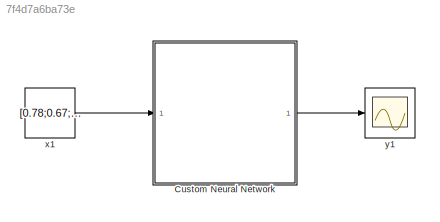
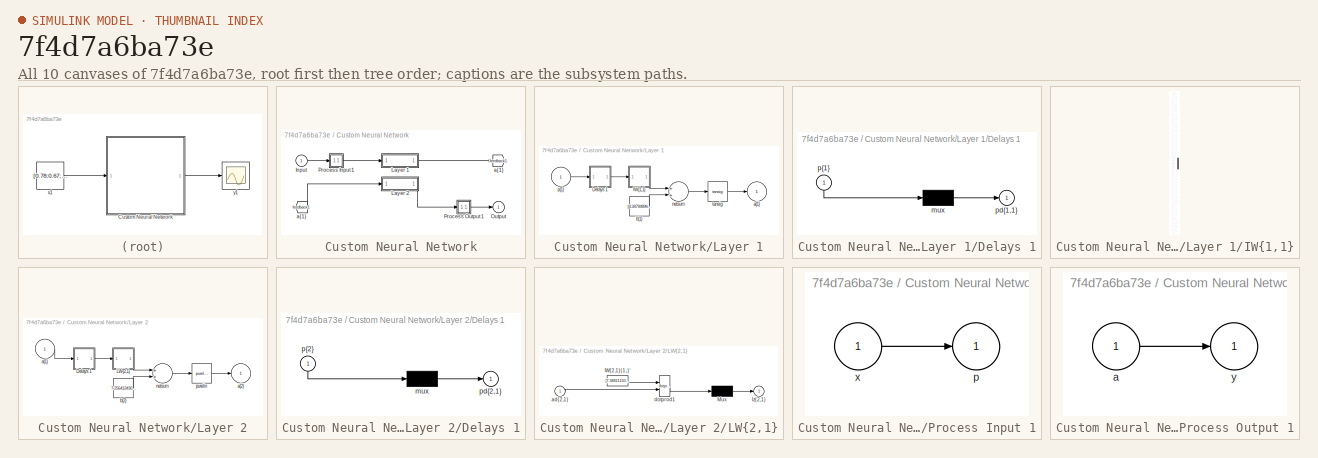
[diagram: thumbnail index - all 10 canvases of the model, root first then tree order]
MODEL slx_7f4d7a6ba73e
KIND model
CONFIG AbsTol = auto
CONFIG EnableMultiTasking = off
CONFIG FixedStep = 0.1
CONFIG MaxStep = auto
CONFIG MinStep = auto
CONFIG RelTol = 1e-3
CONFIG SampleTimeConstraint = Unconstrained
CONFIG Solver = FixedStepAuto
CONFIG SolverName = FixedStepAuto
CONFIG StartTime = 0.0
CONFIG StopTime = 10.0
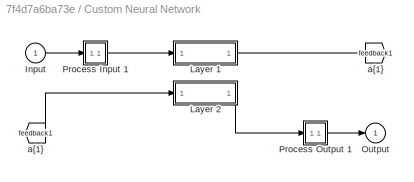
BLOCK [SubSystem] Custom Neural Network
  Ports = [1, 1]
  RequestExecContextInheritance = off
  Variant = off
BLOCK [From] Custom Neural Network/ a{1} 
  GotoTag = feedback1
BLOCK [Inport] Custom Neural Network/Input
  IconDisplay = Port number
  PortDimensions = 4
  SampleTime = 0.1
BLOCK [SubSystem] Custom Neural Network/Layer 1
  Ports = [1, 1]
  RequestExecContextInheritance = off
  Variant = off
BLOCK [SubSystem] Custom Neural Network/Layer 1/Delays 1
  Ports = [1, 1]
  RequestExecContextInheritance = off
  Variant = off
BLOCK [Mux] Custom Neural Network/Layer 1/Delays 1/mux
  Inputs = 1
  Ports = [1, 1]
BLOCK [Outport] Custom Neural Network/Layer 1/Delays 1/pd{1,1}
  IconDisplay = Port number
BLOCK [Inport] Custom Neural Network/Layer 1/Delays 1/p{1}
  IconDisplay = Port number
  PortDimensions = 4
  SampleTime = 0.1
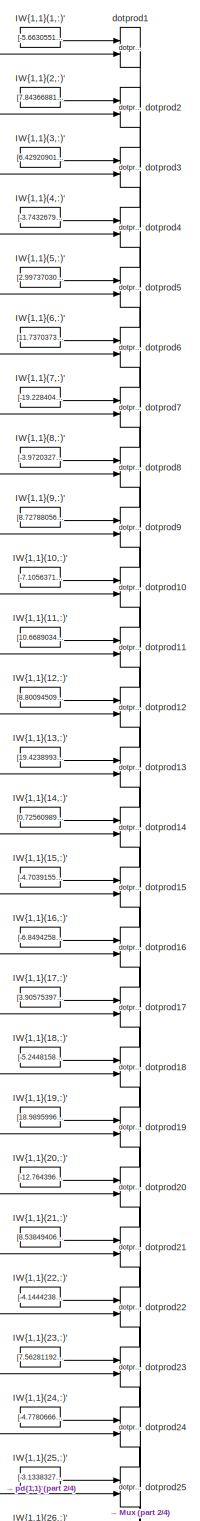
[diagram: Custom Neural Network/Layer 1/IW{1,1} - part 1/4, top center region]
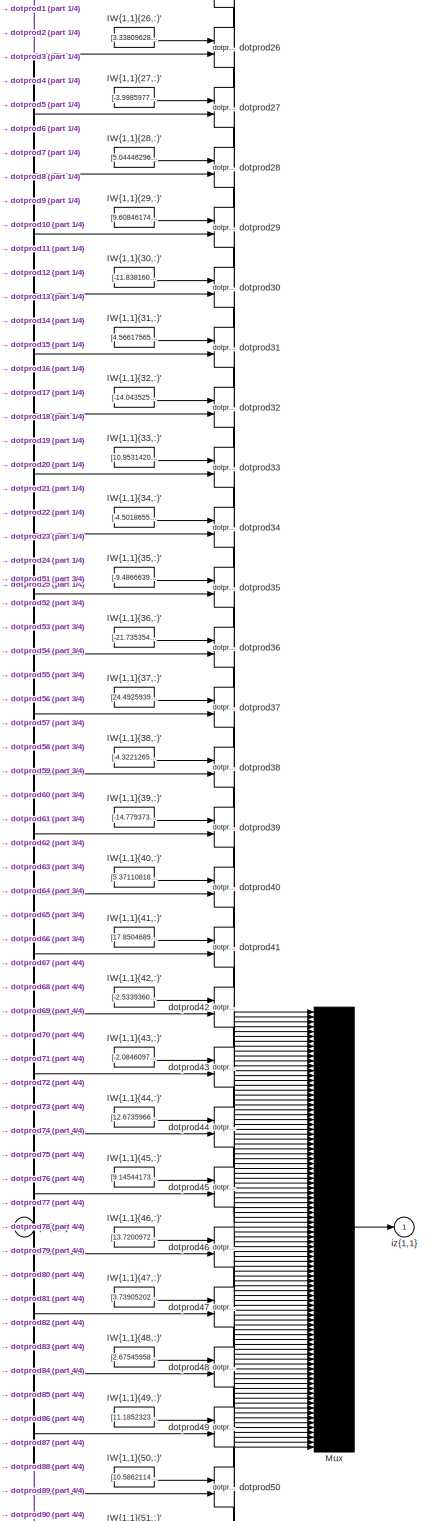
[diagram: Custom Neural Network/Layer 1/IW{1,1} - part 2/4, full width, middle band]
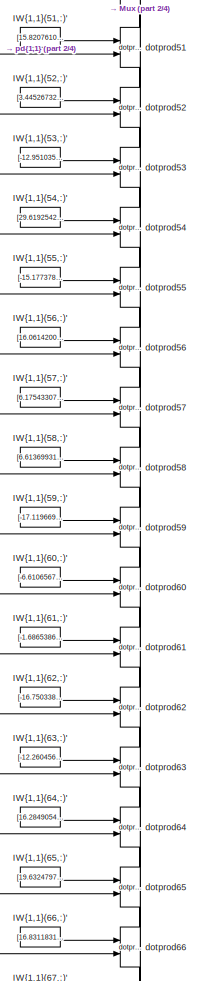
[diagram: Custom Neural Network/Layer 1/IW{1,1} - part 3/4, central region]
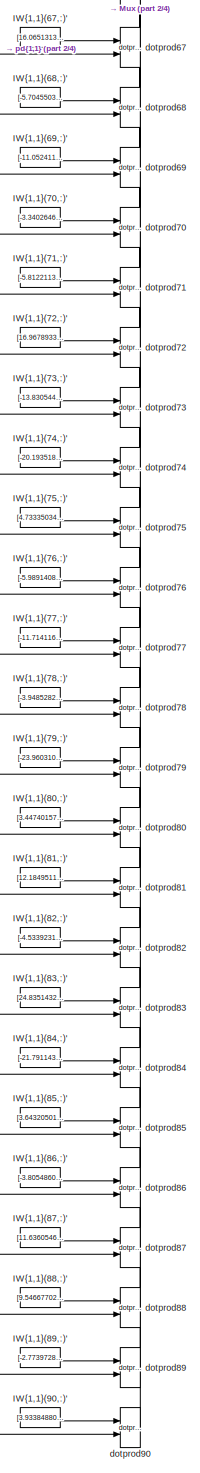
[diagram: Custom Neural Network/Layer 1/IW{1,1} - part 4/4, bottom center region]
BLOCK [SubSystem] Custom Neural Network/Layer 1/IW{1,1}
  Ports = [1, 1]
  RequestExecContextInheritance = off
  Variant = off
BLOCK [Constant] Custom Neural Network/Layer 1/IW{1,1}/IW{1,1}(1,:)'
  Value = [-5.663055179922768189726411947049200534820556640625;-1.8486386820287343812907465689931996166706085205078125;2.509776230114340034305087101529352366924285888671875;-0.0032468850468809489114019317668180519831366837024688720703125]
BLOCK [Constant] Custom Neural Network/Layer 1/IW{1,1}/IW{1,1}(10,:)'
  Value = [-7.1056371489338179259220851236023008823394775390625;-1.587059095260056285070504600298590958118438720703125;-0.14542576986727218102402048316434957087039947509765625;0.00173818559366406056622411657741622548201121389865875244140625]
BLOCK [Constant] Custom Neural Network/Layer 1/IW{1,1}/IW{1,1}(11,:)'
  Value = [10.668903451171235730043918010778725147247314453125;2.488788198560161646355481934733688831329345703125;-0.9763423688469747840912305036908946931362152099609375;-0.0026050452193692764935040173668312490917742252349853515625]
BLOCK [Constant] Custom Neural Network/Layer 1/IW{1,1}/IW{1,1}(12,:)'
  Value = [8.8009450926569599005233612842857837677001953125;-1.3801797596216356378562295503797940909862518310546875;-0.77100396612983679300867834172095172107219696044921875;0.00805268923323524017654495565921024535782635211944580078125]
BLOCK [Constant] Custom Neural Network/Layer 1/IW{1,1}/IW{1,1}(13,:)'
  Value = [19.423899396894061197826886200346052646636962890625;0.76258011516546508890002087355242110788822174072265625;-2.538076503916374182523441049852408468723297119140625;0.07556659714005105332734757439538952894508838653564453125]
BLOCK [Constant] Custom Neural Network/Layer 1/IW{1,1}/IW{1,1}(14,:)'
  Value = [0.725609891590575983855160302482545375823974609375;2.1458495449852090786180269788019359111785888671875;0.00367545189395690648226366903372763772495090961456298828125;-3.75934727591926780808362362762409247807227075099945068359375e-05]
BLOCK [Constant] Custom Neural Network/Layer 1/IW{1,1}/IW{1,1}(15,:)'
  Value = [-4.70391553419362207222320648725144565105438232421875;4.1407583033580319664679336710833013057708740234375;-2.2690381989435426390855354839004576206207275390625;0.0036656733663412328916297866499007795937359333038330078125]
BLOCK [Constant] Custom Neural Network/Layer 1/IW{1,1}/IW{1,1}(16,:)'
  Value = [-6.84942589569384185921308016986586153507232666015625;-1.1491213553052677109889145867782644927501678466796875;-3.469654116377459018849549465812742710113525390625;-0.0009616397811085136172748466520943111390806734561920166015625]
BLOCK [Constant] Custom Neural Network/Layer 1/IW{1,1}/IW{1,1}(17,:)'
  Value = [3.905753970477400915939369951956905424594879150390625;-1.189318240986093400124445906840264797210693359375;-0.60661839287452135049960588730755262076854705810546875;-0.000127987166170992635282066540725054437643848359584808349609375]
BLOCK [Constant] Custom Neural Network/Layer 1/IW{1,1}/IW{1,1}(18,:)'
  Value = [-5.24481583055565447892831798526458442211151123046875;-0.9476197147989460223271862560068257153034210205078125;-2.596187740397116527901744120754301548004150390625;-0.0009779628966480676151296069775753494468517601490020751953125]
BLOCK [Constant] Custom Neural Network/Layer 1/IW{1,1}/IW{1,1}(19,:)'
  Value = [18.989599675174446247183368541300296783447265625;-2.4849807623234507758525069220922887325286865234375;2.06567633703808173351035293308086693286895751953125;-0.0199708288522415754184802239024065784178674221038818359375]
BLOCK [Constant] Custom Neural Network/Layer 1/IW{1,1}/IW{1,1}(2,:)'
  Value = [7.8436688149562900917999286320991814136505126953125;1.3925859086554057686413443661876954138278961181640625;-0.77780834092787143330127719309530220925807952880859375;-0.011108288442760051728530612535905675031244754791259765625]
BLOCK [Constant] Custom Neural Network/Layer 1/IW{1,1}/IW{1,1}(20,:)'
  Value = [-12.764396688527934742296565673314034938812255859375;-1.36748223984319050572366904816590249538421630859375;-0.5118549522708673027437953351181931793689727783203125;0.0117006960887001097704196439508450566790997982025146484375]
BLOCK [Constant] Custom Neural Network/Layer 1/IW{1,1}/IW{1,1}(21,:)'
  Value = [8.53849406682587641626014374196529388427734375;-1.058079280886941031525338985375128686428070068359375;-1.3681201761356522883517072841641493141651153564453125;0.003924583412858835378134170213115794467739760875701904296875]
BLOCK [Constant] Custom Neural Network/Layer 1/IW{1,1}/IW{1,1}(22,:)'
  Value = [-4.14442381749249566524895271868444979190826416015625;0.76803875780266561701381533566745929419994354248046875;1.5786069147743884144574622041545808315277099609375;0.0003246680021777537616077535798098097075126133859157562255859375]
BLOCK [Constant] Custom Neural Network/Layer 1/IW{1,1}/IW{1,1}(23,:)'
  Value = [7.56281192925089928991155829862691462039947509765625;-0.6887674033710009524611450615338981151580810546875;-2.00417238563658184347104906919412314891815185546875;-0.00218199536403301287690315035661114961840212345123291015625]
BLOCK [Constant] Custom Neural Network/Layer 1/IW{1,1}/IW{1,1}(24,:)'
  Value = [-4.7780666143556640435008375789038836956024169921875;-0.28795953376348404351148246860248036682605743408203125;1.1659994809634939283427002010284923017024993896484375;-0.0010012465359968600840667729556798803969286382198333740234375]
BLOCK [Constant] Custom Neural Network/Layer 1/IW{1,1}/IW{1,1}(25,:)'
  Value = [-3.13383278381707786053311792784370481967926025390625;-1.2003146929894141781147709480137564241886138916015625;-0.64332806153270694071721891305060125887393951416015625;-0.00186166825434911742224997066585956417839042842388153076171875]
BLOCK [Constant] Custom Neural Network/Layer 1/IW{1,1}/IW{1,1}(26,:)'
  Value = [3.33809628293461368997441240935586392879486083984375;-1.8561786357643821343543777402373962104320526123046875;0.53597590863070643241172774651204235851764678955078125;-0.0017959057293415099133826462463048301287926733493804931640625]
BLOCK [Constant] Custom Neural Network/Layer 1/IW{1,1}/IW{1,1}(27,:)'
  Value = [-3.99859774971391335185444404487498104572296142578125;-1.03168996547778224481817233026959002017974853515625;-1.983420576078838148958993770065717399120330810546875;-0.0012217775564006667053662535948888034909032285213470458984375]
BLOCK [Constant] Custom Neural Network/Layer 1/IW{1,1}/IW{1,1}(28,:)'
  Value = [5.04446296841230878982287322287447750568389892578125;-1.835414287908327946041708855773322284221649169921875;2.838821613902379414895449372124858200550079345703125;-0.002691808000104317123712949211267186910845339298248291015625]
BLOCK [Constant] Custom Neural Network/Layer 1/IW{1,1}/IW{1,1}(29,:)'
  Value = [9.6084617465890662657557186321355402469635009765625;-0.00072049538915721321463703219478702521882951259613037109375;6.06399916954194484475237914011813700199127197265625;0.00175531089239968599198526977289702699636109173297882080078125]
BLOCK [Constant] Custom Neural Network/Layer 1/IW{1,1}/IW{1,1}(3,:)'
  Value = [6.42920901516750209481187994242645800113677978515625;1.09091075798048819933683262206614017486572265625;-1.7085447255609504946249899148824624717235565185546875;0.0015060042517699308815826153562511535710655152797698974609375]
BLOCK [Constant] Custom Neural Network/Layer 1/IW{1,1}/IW{1,1}(30,:)'
  Value = [-11.8381608392357176029463516897521913051605224609375;4.24851542456243347345434813178144395351409912109375;-3.91632469609256705922462060698308050632476806640625;0.00329734394873218254751190414708617026917636394500732421875]
BLOCK [Constant] Custom Neural Network/Layer 1/IW{1,1}/IW{1,1}(31,:)'
  Value = [4.56617565466388253270224595325998961925506591796875;2.55200015990363215934166873921640217304229736328125;-0.019603591603637025853057451740824035368859767913818359375;-1.078653341105612710189125269533150230927276425063610076904296875e-05]
BLOCK [Constant] Custom Neural Network/Layer 1/IW{1,1}/IW{1,1}(32,:)'
  Value = [-14.04352508127061582854366861283779144287109375;1.3631680046939933514948961601476185023784637451171875;-5.51404855819434391861477706697769463062286376953125;-0.015974852259528049547299133337219245731830596923828125]
BLOCK [Constant] Custom Neural Network/Layer 1/IW{1,1}/IW{1,1}(33,:)'
  Value = [10.9531420714974760954874000162817537784576416015625;-7.1568190608585613432524041854776442050933837890625;2.909535717978159130581161662121303379535675048828125;-0.01103531625056818933627855727763744653202593326568603515625]
BLOCK [Constant] Custom Neural Network/Layer 1/IW{1,1}/IW{1,1}(34,:)'
  Value = [-4.501865507923287879066265304572880268096923828125;1.052233334927002328385015061940066516399383544921875;-0.98622861261007954691848453876446001231670379638671875;-0.00013098302536016466816014280905022815204574726521968841552734375]
BLOCK [Constant] Custom Neural Network/Layer 1/IW{1,1}/IW{1,1}(35,:)'
  Value = [-9.486663991585626121150198741815984249114990234375;2.425619275747344705251862251316197216510772705078125;3.112304850593666127878123006667010486125946044921875;0.00859642896081955383558170780133877997286617755889892578125]
BLOCK [Constant] Custom Neural Network/Layer 1/IW{1,1}/IW{1,1}(36,:)'
  Value = [-21.735354197319022517831399454735219478607177734375;-0.0648616577665379612227525285561569035053253173828125;-2.11851103791399442144438580726273357868194580078125;0.023652099446075658395471918993280269205570220947265625]
BLOCK [Constant] Custom Neural Network/Layer 1/IW{1,1}/IW{1,1}(37,:)'
  Value = [24.492593995683680674346760497428476810455322265625;1.6538138157921735693633991104434244334697723388671875;1.860125580216188456716963628423400223255157470703125;-0.01483856245857779511398977234648555167950689792633056640625]
BLOCK [Constant] Custom Neural Network/Layer 1/IW{1,1}/IW{1,1}(38,:)'
  Value = [-4.3221265750537778416173750883899629116058349609375;-5.057822441927715573228852008469402790069580078125;-0.2275336823456828028167109323476324789226055145263671875;-0.00570950753420003398463933308448758907616138458251953125]
BLOCK [Constant] Custom Neural Network/Layer 1/IW{1,1}/IW{1,1}(39,:)'
  Value = [-14.7793731209568175444246662664227187633514404296875;2.9954196194733970770585074205882847309112548828125;0.58911652308095396879394911593408323824405670166015625;0.02316492286407288714311647481736144982278347015380859375]
BLOCK [Constant] Custom Neural Network/Layer 1/IW{1,1}/IW{1,1}(4,:)'
  Value = [-3.74326795283044244655457077897153794765472412109375;0.393175510055841781476004825890413485467433929443359375;0.1078198304671060536730209378220024518668651580810546875;0.00055588054679092733893763789154718324425630271434783935546875]
BLOCK [Constant] Custom Neural Network/Layer 1/IW{1,1}/IW{1,1}(40,:)'
  Value = [5.37110818112919741196265022153966128826141357421875;-0.355134643424061813288261646448518149554729461669921875;2.48494003135270968840586647274903953075408935546875;-0.0001172505565295280864461513470331510688993148505687713623046875]
BLOCK [Constant] Custom Neural Network/Layer 1/IW{1,1}/IW{1,1}(41,:)'
  Value = [17.850468997522312974979286082088947296142578125;0.0182206690649639284351746226775503600947558879852294921875;-8.3379540430997653999156682402826845645904541015625;0.004638594297278063501022149495156554621644318103790283203125]
BLOCK [Constant] Custom Neural Network/Layer 1/IW{1,1}/IW{1,1}(42,:)'
  Value = [-2.533936007409275159574235658510588109493255615234375;-1.3609332087754208995278304428211413323879241943359375;0.385036459925404417337091445006080903112888336181640625;-0.004664950376666994642793628855770293739624321460723876953125]
BLOCK [Constant] Custom Neural Network/Layer 1/IW{1,1}/IW{1,1}(43,:)'
  Value = [-2.0846097400025325185879410128109157085418701171875;2.557523153907251600713834704947657883167266845703125;-0.10775239720048816749464748454556684009730815887451171875;0.00332497869749255776927743255555469659157097339630126953125]
BLOCK [Constant] Custom Neural Network/Layer 1/IW{1,1}/IW{1,1}(44,:)'
  Value = [12.67359661317333774377402733080089092254638671875;-2.04565080023198131442541125579737126827239990234375;1.00553079444234771955279938993044197559356689453125;-0.07943873231218685770915755028909188695251941680908203125]
BLOCK [Constant] Custom Neural Network/Layer 1/IW{1,1}/IW{1,1}(45,:)'
  Value = [9.145441736734941429176615201868116855621337890625;-5.28160388243335443547721297363750636577606201171875;-2.102554825828951035049385609454475343227386474609375;-0.006946964539158321204348478516976683749817311763763427734375]
BLOCK [Constant] Custom Neural Network/Layer 1/IW{1,1}/IW{1,1}(46,:)'
  Value = [13.7200972702299370808987077907659113407135009765625;9.025698205441660348924415302462875843048095703125;-1.5655846731174414276921424971078522503376007080078125;0.002375146715540493898288776364324803580529987812042236328125]
BLOCK [Constant] Custom Neural Network/Layer 1/IW{1,1}/IW{1,1}(47,:)'
  Value = [3.739052024529801343533108592964708805084228515625;4.5756580540635791720660563441924750804901123046875;0.66117223628817234359900112394825555384159088134765625;0.007618866976495129728075283992438926361501216888427734375]
BLOCK [Constant] Custom Neural Network/Layer 1/IW{1,1}/IW{1,1}(48,:)'
  Value = [2.675459587093772739763153367675840854644775390625;-0.26927777350471870931869489140808582305908203125;-0.708438950580737358819760629558004438877105712890625;0.00046183311824433297999858982763043968589045107364654541015625]
BLOCK [Constant] Custom Neural Network/Layer 1/IW{1,1}/IW{1,1}(49,:)'
  Value = [11.1852323894585197194828651845455169677734375;1.1866645543055251987851761441561393439769744873046875;1.8200402202123289185919929877854883670806884765625;0.0190511576954419496743309281328038196079432964324951171875]
BLOCK [Constant] Custom Neural Network/Layer 1/IW{1,1}/IW{1,1}(5,:)'
  Value = [2.9973703063922787492856514290906488895416259765625;-2.09056216593740185061278680223040282726287841796875;0.76435181195235257778364257319481112062931060791015625;-0.001916327658493703796349638679430427146144211292266845703125]
BLOCK [Constant] Custom Neural Network/Layer 1/IW{1,1}/IW{1,1}(50,:)'
  Value = [10.5862114092053776204238602076657116413116455078125;0.00926488641136813222132229128646940807811915874481201171875;1.9555534037808322000984162514214403927326202392578125;-0.01616287482505933403853504159997100941836833953857421875]
BLOCK [Constant] Custom Neural Network/Layer 1/IW{1,1}/IW{1,1}(51,:)'
  Value = [15.820761091279816668020430370233952999114990234375;4.4275857315650029022435774095356464385986328125;-3.119376283176055419943395463633351027965545654296875;0.0157950606784424928130672327597494586370885372161865234375]
BLOCK [Constant] Custom Neural Network/Layer 1/IW{1,1}/IW{1,1}(52,:)'
  Value = [3.44526732257816536986183564295060932636260986328125;0.235971813159215060284878973106970079243183135986328125;2.348900866555988731221304988139308989048004150390625;0.006035818609671848682107775374561242642812430858612060546875]
BLOCK [Constant] Custom Neural Network/Layer 1/IW{1,1}/IW{1,1}(53,:)'
  Value = [-12.9510350166270900018616885063238441944122314453125;2.429010651218785454830140224657952785491943359375;-3.98417196431328068939592412789352238178253173828125;0.00800329420247625385187451030333249946124851703643798828125]
BLOCK [Constant] Custom Neural Network/Layer 1/IW{1,1}/IW{1,1}(54,:)'
  Value = [29.619254272004528871775619336403906345367431640625;0.424702211752397140731574154415284283459186553955078125;1.959720824135648964414713191217742860317230224609375;0.03264961604629783298303635774573194794356822967529296875]
BLOCK [Constant] Custom Neural Network/Layer 1/IW{1,1}/IW{1,1}(55,:)'
  Value = [-15.1773782369442589157415568479336798191070556640625;4.24432766823510387865781012806110084056854248046875;3.14032091245389199940518665243871510028839111328125;0.0110334132566608233982918818583129905164241790771484375]
BLOCK [Constant] Custom Neural Network/Layer 1/IW{1,1}/IW{1,1}(56,:)'
  Value = [16.061420087061140549167248536832630634307861328125;-0.96613948397087578978670308060827665030956268310546875;-1.811968432886474023035816571791656315326690673828125;-0.07515307516451304181703818585447152145206928253173828125]
BLOCK [Constant] Custom Neural Network/Layer 1/IW{1,1}/IW{1,1}(57,:)'
  Value = [6.17543307631819704539566373568959534168243408203125;-0.0297110226247030810575733283940280671231448650360107421875;1.7862303766229088441974681700230576097965240478515625;0.002255684753552524186848149412298880633898079395294189453125]
BLOCK [Constant] Custom Neural Network/Layer 1/IW{1,1}/IW{1,1}(58,:)'
  Value = [6.61369931994545634523774424451403319835662841796875;1.540352355719238008902038927772082388401031494140625;-0.74567002594164966122747273402637802064418792724609375;0.000194129019777576519549533440311961385305039584636688232421875]
BLOCK [Constant] Custom Neural Network/Layer 1/IW{1,1}/IW{1,1}(59,:)'
  Value = [-17.119669081603280602621452999301254749298095703125;-0.30371912244248810974767138759489171206951141357421875;5.59141316015086697888136768597178161144256591796875;0.086595937407012268938188981337589211761951446533203125]
BLOCK [Constant] Custom Neural Network/Layer 1/IW{1,1}/IW{1,1}(6,:)'
  Value = [11.737037324332806775828430545516312122344970703125;-0.71123016364360591712312498202663846313953399658203125;-0.75433722959580762346121218797634355723857879638671875;-0.010303246735854122706488311678185709752142429351806640625]
BLOCK [Constant] Custom Neural Network/Layer 1/IW{1,1}/IW{1,1}(60,:)'
  Value = [-6.6106567631952710684117846540175378322601318359375;0.785094025767591130460232307086698710918426513671875;3.439078215842112928868345989030785858631134033203125;0.0018060192840973986715125132462844703695736825466156005859375]
BLOCK [Constant] Custom Neural Network/Layer 1/IW{1,1}/IW{1,1}(61,:)'
  Value = [-1.6865386853924515531133465628954581916332244873046875;-0.52762192278685848823016613096115179359912872314453125;0.40036160753713101456696676905266940593719482421875;-0.000742509336781177627616334913085438529378734529018402099609375]
BLOCK [Constant] Custom Neural Network/Layer 1/IW{1,1}/IW{1,1}(62,:)'
  Value = [-16.75033847773563167038446408696472644805908203125;0.7155512460545014885582304486888460814952850341796875;-1.4857825515305778107943979193805716931819915771484375;-0.0808592180816990746539119072622270323336124420166015625]
BLOCK [Constant] Custom Neural Network/Layer 1/IW{1,1}/IW{1,1}(63,:)'
  Value = [-12.2604561537218810229887822060845792293548583984375;-1.5118624318598004041547255837940610945224761962890625;6.12161123438186205447664178791455924510955810546875;-0.0025939385996136851524063171581246933783404529094696044921875]
BLOCK [Constant] Custom Neural Network/Layer 1/IW{1,1}/IW{1,1}(64,:)'
  Value = [16.28490542431615750729179126210510730743408203125;-2.111189410386396847485457328730262815952301025390625;1.005099308160126714284388071973808109760284423828125;-0.0184622623330876652059107101422341656871140003204345703125]
BLOCK [Constant] Custom Neural Network/Layer 1/IW{1,1}/IW{1,1}(65,:)'
  Value = [19.63247971872055330777584458701312541961669921875;2.462175434733116841101718819118104875087738037109375;4.62284016326046742761946006794460117816925048828125;0.053237442286734389107483167435930226929485797882080078125]
BLOCK [Constant] Custom Neural Network/Layer 1/IW{1,1}/IW{1,1}(66,:)'
  Value = [16.831183192135807047407070058397948741912841796875;2.1419651160207155982106996816582977771759033203125;0.365790577308389597277482607751153409481048583984375;-0.0581431219115392250440521593191078864037990570068359375]
BLOCK [Constant] Custom Neural Network/Layer 1/IW{1,1}/IW{1,1}(67,:)'
  Value = [16.065131361160670309118359000422060489654541015625;-0.9103239327436953853833756511448882520198822021484375;-1.8078204107182587190294498213916085660457611083984375;-0.0749331690409600070790219206173787824809551239013671875]
BLOCK [Constant] Custom Neural Network/Layer 1/IW{1,1}/IW{1,1}(68,:)'
  Value = [-5.704550374639143939248242531903088092803955078125;0.8928590912653486810768299619667232036590576171875;-0.5274978382897883566471364247263409197330474853515625;0.0012061217134409353383961427397252919035963714122772216796875]
BLOCK [Constant] Custom Neural Network/Layer 1/IW{1,1}/IW{1,1}(69,:)'
  Value = [-11.0524119527168682708406777237541973590850830078125;-7.17211533835423864502445212565362453460693359375;0.02256909437334060630764298593931016512215137481689453125;-0.00149180911187509856845323508167666659574024379253387451171875]
BLOCK [Constant] Custom Neural Network/Layer 1/IW{1,1}/IW{1,1}(7,:)'
  Value = [-19.2284043828263548903123592026531696319580078125;-3.928261271580351543519782353541813790798187255859375;3.875899416186256107863528086454607546329498291015625;0.0035281324766624987641916444403022978804074227809906005859375]
BLOCK [Constant] Custom Neural Network/Layer 1/IW{1,1}/IW{1,1}(70,:)'
  Value = [-3.34026461962592247090242381091229617595672607421875;2.64475190164842732798433644347824156284332275390625;2.0728766590253062673809836269356310367584228515625;0.0036987785293075216459801612955970995244570076465606689453125]
BLOCK [Constant] Custom Neural Network/Layer 1/IW{1,1}/IW{1,1}(71,:)'
  Value = [-5.812211337363510921250053797848522663116455078125;1.2324787642705654633346057380549609661102294921875;1.886720726103792156180816164123825728893280029296875;-0.00119850780102591890352581316392388544045388698577880859375]
BLOCK [Constant] Custom Neural Network/Layer 1/IW{1,1}/IW{1,1}(72,:)'
  Value = [16.9678933471672763744209078140556812286376953125;0.63159701488313102490934625166119076311588287353515625;0.2091934038423406139184379526341217570006847381591796875;0.3106021475749216609330005667288787662982940673828125]
BLOCK [Constant] Custom Neural Network/Layer 1/IW{1,1}/IW{1,1}(73,:)'
  Value = [-13.83054498018316991192477871663868427276611328125;-0.0845055188306285953725449644480249844491481781005859375;-1.6120219511914311016909095997107215225696563720703125;-0.0903087921868681309245374677630024962127208709716796875]
BLOCK [Constant] Custom Neural Network/Layer 1/IW{1,1}/IW{1,1}(74,:)'
  Value = [-20.193518440662320045930755441077053546905517578125;-0.7064943657514042296696743505890481173992156982421875;3.244222561988433284341226681135594844818115234375;-0.55957458606515009247317493645823560655117034912109375]
BLOCK [Constant] Custom Neural Network/Layer 1/IW{1,1}/IW{1,1}(75,:)'
  Value = [4.7333503415772302247432889998890459537506103515625;1.292354551382826510774748385301791131496429443359375;1.87321000349708111087920769932679831981658935546875;0.001877315482574117878888930732728113071061670780181884765625]
BLOCK [Constant] Custom Neural Network/Layer 1/IW{1,1}/IW{1,1}(76,:)'
  Value = [-5.98914080087259481643968683783896267414093017578125;-2.764662456622289710139739327132701873779296875;0.1433090862549294686179024438388296402990818023681640625;-0.00597293833284829288332584695808691321872174739837646484375]
BLOCK [Constant] Custom Neural Network/Layer 1/IW{1,1}/IW{1,1}(77,:)'
  Value = [-11.714116798567697941280130180530250072479248046875;-3.33937209349221308940514063579030334949493408203125;1.3440212528559596361077410620055161416530609130859375;-0.00141109673686453372144777862473574714385904371738433837890625]
BLOCK [Constant] Custom Neural Network/Layer 1/IW{1,1}/IW{1,1}(78,:)'
  Value = [-3.948528227627168707414284654078073799610137939453125;-0.6760576131486335516029839709517545998096466064453125;1.4142470714094350636713670610333792865276336669921875;-0.002136243803871173095598745561574105522595345973968505859375]
BLOCK [Constant] Custom Neural Network/Layer 1/IW{1,1}/IW{1,1}(79,:)'
  Value = [-23.960310944447538616941528744064271450042724609375;0.6548568351458705638634683054988272488117218017578125;-0.62590341846708474893290485852048732340335845947265625;0.1459647850712872951817189459688961505889892578125]
BLOCK [Constant] Custom Neural Network/Layer 1/IW{1,1}/IW{1,1}(8,:)'
  Value = [-3.972032779765280796624438153230585157871246337890625;0.8559690092096783331498954794369637966156005859375;-0.29665647634360203799275268465862609446048736572265625;9.5997678622200801538781600452665543343755416572093963623046875e-05]
BLOCK [Constant] Custom Neural Network/Layer 1/IW{1,1}/IW{1,1}(80,:)'
  Value = [3.4474015731326712597137884586118161678314208984375;0.01993291317966362774516397848856286145746707916259765625;2.58022530069517497253173132776282727718353271484375;0.0001392084370468726906011625032988376915454864501953125]
BLOCK [Constant] Custom Neural Network/Layer 1/IW{1,1}/IW{1,1}(81,:)'
  Value = [12.1849511469103060079532951931469142436981201171875;3.5072810028670833304431653232313692569732666015625;-1.4017182664543599290851716432371176779270172119140625;0.0015111567894541323188450920866898741223849356174468994140625]
BLOCK [Constant] Custom Neural Network/Layer 1/IW{1,1}/IW{1,1}(82,:)'
  Value = [-4.5339231419577235016049598925746977329254150390625;-0.36322836369201338957424241016269661486148834228515625;0.036517641538707491799531368315001600421965122222900390625;-0.00080685020636373470936941743048009811900556087493896484375]
BLOCK [Constant] Custom Neural Network/Layer 1/IW{1,1}/IW{1,1}(83,:)'
  Value = [24.83514323736053341917795478366315364837646484375;-0.31572975529016977791485487614409066736698150634765625;4.6343362133443530836984791676513850688934326171875;-0.03786971196347001245019470161423669196665287017822265625]
BLOCK [Constant] Custom Neural Network/Layer 1/IW{1,1}/IW{1,1}(84,:)'
  Value = [-21.791143809566289490931012551300227642059326171875;2.18508583290226710005299537442624568939208984375;0.3731958154174426223192995166755281388759613037109375;-0.0774276630634156137755752524753916077315807342529296875]
BLOCK [Constant] Custom Neural Network/Layer 1/IW{1,1}/IW{1,1}(85,:)'
  Value = [3.643205013733262109809629691881127655506134033203125;-1.1562884819292869043039218013291247189044952392578125;-2.196000324701278483274791142321191728115081787109375;-0.0018990562630279025045643148672525057918392121791839599609375]
BLOCK [Constant] Custom Neural Network/Layer 1/IW{1,1}/IW{1,1}(86,:)'
  Value = [-3.8054860972668205221225434797815978527069091796875;1.3997250157908955880969870122498832643032073974609375;-0.75518412649268229497323545729159377515316009521484375;0.0003995046016632625217150642793484394132974557578563690185546875]
BLOCK [Constant] Custom Neural Network/Layer 1/IW{1,1}/IW{1,1}(87,:)'
  Value = [11.636054686864223839393162052147090435028076171875;1.9702473166762570766508133601746521890163421630859375;0.285739217008418922016943497510510496795177459716796875;0.01619993269324011830878617956841480918228626251220703125]
BLOCK [Constant] Custom Neural Network/Layer 1/IW{1,1}/IW{1,1}(88,:)'
  Value = [9.546677023925585814367877901531755924224853515625;1.2732728720927892762659894287935458123683929443359375;-0.1547495267105854777067719396654865704476833343505859375;0.04225865260140715395920096852933056652545928955078125]
BLOCK [Constant] Custom Neural Network/Layer 1/IW{1,1}/IW{1,1}(89,:)'
  Value = [-2.773972875731901321927352910279296338558197021484375;-0.180305818582838395247591734005254693329334259033203125;-0.48593708809181801466792194332811050117015838623046875;-0.005379373100195265940126621018180230748839676380157470703125]
BLOCK [Constant] Custom Neural Network/Layer 1/IW{1,1}/IW{1,1}(9,:)'
  Value = [8.7278805639790704162805923260748386383056640625;4.3741797423043582426771536120213568210601806640625;0.72756376167943359600798203246085904538631439208984375;0.007751813597573431469101024049450643360614776611328125]
BLOCK [Constant] Custom Neural Network/Layer 1/IW{1,1}/IW{1,1}(90,:)'
  Value = [3.933848800144243096355012312415055930614471435546875;0.847833997683931084310415826621465384960174560546875;-0.129494954399179740267555871469085104763507843017578125;0.001796350723923169183382508862223403411917388439178466796875]
BLOCK [Mux] Custom Neural Network/Layer 1/IW{1,1}/Mux
  Inputs = 90
  Ports = [90, 1]
BLOCK [Reference] Custom Neural Network/Layer 1/IW{1,1}/dotprod1  REF=neural/Weight Functions/dotprod
  Ports = [2, 1]
  SourceBlock = neural/Weight Functions/dotprod
  SourceProductBaseCode = NN
  SourceProductName = Neural Network Toolbox
  SourceType = DOTPROD
BLOCK [Reference] Custom Neural Network/Layer 1/IW{1,1}/dotprod10  REF=neural/Weight Functions/dotprod
  Ports = [2, 1]
  SourceBlock = neural/Weight Functions/dotprod
  SourceProductBaseCode = NN
  SourceProductName = Neural Network Toolbox
  SourceType = DOTPROD
BLOCK [Reference] Custom Neural Network/Layer 1/IW{1,1}/dotprod11  REF=neural/Weight Functions/dotprod
  Ports = [2, 1]
  SourceBlock = neural/Weight Functions/dotprod
  SourceProductBaseCode = NN
  SourceProductName = Neural Network Toolbox
  SourceType = DOTPROD
BLOCK [Reference] Custom Neural Network/Layer 1/IW{1,1}/dotprod12  REF=neural/Weight Functions/dotprod
  Ports = [2, 1]
  SourceBlock = neural/Weight Functions/dotprod
  SourceProductBaseCode = NN
  SourceProductName = Neural Network Toolbox
  SourceType = DOTPROD
BLOCK [Reference] Custom Neural Network/Layer 1/IW{1,1}/dotprod13  REF=neural/Weight Functions/dotprod
  Ports = [2, 1]
  SourceBlock = neural/Weight Functions/dotprod
  SourceProductBaseCode = NN
  SourceProductName = Neural Network Toolbox
  SourceType = DOTPROD
BLOCK [Reference] Custom Neural Network/Layer 1/IW{1,1}/dotprod14  REF=neural/Weight Functions/dotprod
  Ports = [2, 1]
  SourceBlock = neural/Weight Functions/dotprod
  SourceProductBaseCode = NN
  SourceProductName = Neural Network Toolbox
  SourceType = DOTPROD
BLOCK [Reference] Custom Neural Network/Layer 1/IW{1,1}/dotprod15  REF=neural/Weight Functions/dotprod
  Ports = [2, 1]
  SourceBlock = neural/Weight Functions/dotprod
  SourceProductBaseCode = NN
  SourceProductName = Neural Network Toolbox
  SourceType = DOTPROD
BLOCK [Reference] Custom Neural Network/Layer 1/IW{1,1}/dotprod16  REF=neural/Weight Functions/dotprod
  Ports = [2, 1]
  SourceBlock = neural/Weight Functions/dotprod
  SourceProductBaseCode = NN
  SourceProductName = Neural Network Toolbox
  SourceType = DOTPROD
BLOCK [Reference] Custom Neural Network/Layer 1/IW{1,1}/dotprod17  REF=neural/Weight Functions/dotprod
  Ports = [2, 1]
  SourceBlock = neural/Weight Functions/dotprod
  SourceProductBaseCode = NN
  SourceProductName = Neural Network Toolbox
  SourceType = DOTPROD
BLOCK [Reference] Custom Neural Network/Layer 1/IW{1,1}/dotprod18  REF=neural/Weight Functions/dotprod
  Ports = [2, 1]
  SourceBlock = neural/Weight Functions/dotprod
  SourceProductBaseCode = NN
  SourceProductName = Neural Network Toolbox
  SourceType = DOTPROD
BLOCK [Reference] Custom Neural Network/Layer 1/IW{1,1}/dotprod19  REF=neural/Weight Functions/dotprod
  Ports = [2, 1]
  SourceBlock = neural/Weight Functions/dotprod
  SourceProductBaseCode = NN
  SourceProductName = Neural Network Toolbox
  SourceType = DOTPROD
BLOCK [Reference] Custom Neural Network/Layer 1/IW{1,1}/dotprod2  REF=neural/Weight Functions/dotprod
  Ports = [2, 1]
  SourceBlock = neural/Weight Functions/dotprod
  SourceProductBaseCode = NN
  SourceProductName = Neural Network Toolbox
  SourceType = DOTPROD
BLOCK [Reference] Custom Neural Network/Layer 1/IW{1,1}/dotprod20  REF=neural/Weight Functions/dotprod
  Ports = [2, 1]
  SourceBlock = neural/Weight Functions/dotprod
  SourceProductBaseCode = NN
  SourceProductName = Neural Network Toolbox
  SourceType = DOTPROD
BLOCK [Reference] Custom Neural Network/Layer 1/IW{1,1}/dotprod21  REF=neural/Weight Functions/dotprod
  Ports = [2, 1]
  SourceBlock = neural/Weight Functions/dotprod
  SourceProductBaseCode = NN
  SourceProductName = Neural Network Toolbox
  SourceType = DOTPROD
BLOCK [Reference] Custom Neural Network/Layer 1/IW{1,1}/dotprod22  REF=neural/Weight Functions/dotprod
  Ports = [2, 1]
  SourceBlock = neural/Weight Functions/dotprod
  SourceProductBaseCode = NN
  SourceProductName = Neural Network Toolbox
  SourceType = DOTPROD
BLOCK [Reference] Custom Neural Network/Layer 1/IW{1,1}/dotprod23  REF=neural/Weight Functions/dotprod
  Ports = [2, 1]
  SourceBlock = neural/Weight Functions/dotprod
  SourceProductBaseCode = NN
  SourceProductName = Neural Network Toolbox
  SourceType = DOTPROD
BLOCK [Reference] Custom Neural Network/Layer 1/IW{1,1}/dotprod24  REF=neural/Weight Functions/dotprod
  Ports = [2, 1]
  SourceBlock = neural/Weight Functions/dotprod
  SourceProductBaseCode = NN
  SourceProductName = Neural Network Toolbox
  SourceType = DOTPROD
BLOCK [Reference] Custom Neural Network/Layer 1/IW{1,1}/dotprod25  REF=neural/Weight Functions/dotprod
  Ports = [2, 1]
  SourceBlock = neural/Weight Functions/dotprod
  SourceProductBaseCode = NN
  SourceProductName = Neural Network Toolbox
  SourceType = DOTPROD
BLOCK [Reference] Custom Neural Network/Layer 1/IW{1,1}/dotprod26  REF=neural/Weight Functions/dotprod
  Ports = [2, 1]
  SourceBlock = neural/Weight Functions/dotprod
  SourceProductBaseCode = NN
  SourceProductName = Neural Network Toolbox
  SourceType = DOTPROD
BLOCK [Reference] Custom Neural Network/Layer 1/IW{1,1}/dotprod27  REF=neural/Weight Functions/dotprod
  Ports = [2, 1]
  SourceBlock = neural/Weight Functions/dotprod
  SourceProductBaseCode = NN
  SourceProductName = Neural Network Toolbox
  SourceType = DOTPROD
BLOCK [Reference] Custom Neural Network/Layer 1/IW{1,1}/dotprod28  REF=neural/Weight Functions/dotprod
  Ports = [2, 1]
  SourceBlock = neural/Weight Functions/dotprod
  SourceProductBaseCode = NN
  SourceProductName = Neural Network Toolbox
  SourceType = DOTPROD
BLOCK [Reference] Custom Neural Network/Layer 1/IW{1,1}/dotprod29  REF=neural/Weight Functions/dotprod
  Ports = [2, 1]
  SourceBlock = neural/Weight Functions/dotprod
  SourceProductBaseCode = NN
  SourceProductName = Neural Network Toolbox
  SourceType = DOTPROD
BLOCK [Reference] Custom Neural Network/Layer 1/IW{1,1}/dotprod3  REF=neural/Weight Functions/dotprod
  Ports = [2, 1]
  SourceBlock = neural/Weight Functions/dotprod
  SourceProductBaseCode = NN
  SourceProductName = Neural Network Toolbox
  SourceType = DOTPROD
BLOCK [Reference] Custom Neural Network/Layer 1/IW{1,1}/dotprod30  REF=neural/Weight Functions/dotprod
  Ports = [2, 1]
  SourceBlock = neural/Weight Functions/dotprod
  SourceProductBaseCode = NN
  SourceProductName = Neural Network Toolbox
  SourceType = DOTPROD
BLOCK [Reference] Custom Neural Network/Layer 1/IW{1,1}/dotprod31  REF=neural/Weight Functions/dotprod
  Ports = [2, 1]
  SourceBlock = neural/Weight Functions/dotprod
  SourceProductBaseCode = NN
  SourceProductName = Neural Network Toolbox
  SourceType = DOTPROD
BLOCK [Reference] Custom Neural Network/Layer 1/IW{1,1}/dotprod32  REF=neural/Weight Functions/dotprod
  Ports = [2, 1]
  SourceBlock = neural/Weight Functions/dotprod
  SourceProductBaseCode = NN
  SourceProductName = Neural Network Toolbox
  SourceType = DOTPROD
BLOCK [Reference] Custom Neural Network/Layer 1/IW{1,1}/dotprod33  REF=neural/Weight Functions/dotprod
  Ports = [2, 1]
  SourceBlock = neural/Weight Functions/dotprod
  SourceProductBaseCode = NN
  SourceProductName = Neural Network Toolbox
  SourceType = DOTPROD
BLOCK [Reference] Custom Neural Network/Layer 1/IW{1,1}/dotprod34  REF=neural/Weight Functions/dotprod
  Ports = [2, 1]
  SourceBlock = neural/Weight Functions/dotprod
  SourceProductBaseCode = NN
  SourceProductName = Neural Network Toolbox
  SourceType = DOTPROD
BLOCK [Reference] Custom Neural Network/Layer 1/IW{1,1}/dotprod35  REF=neural/Weight Functions/dotprod
  Ports = [2, 1]
  SourceBlock = neural/Weight Functions/dotprod
  SourceProductBaseCode = NN
  SourceProductName = Neural Network Toolbox
  SourceType = DOTPROD
BLOCK [Reference] Custom Neural Network/Layer 1/IW{1,1}/dotprod36  REF=neural/Weight Functions/dotprod
  Ports = [2, 1]
  SourceBlock = neural/Weight Functions/dotprod
  SourceProductBaseCode = NN
  SourceProductName = Neural Network Toolbox
  SourceType = DOTPROD
BLOCK [Reference] Custom Neural Network/Layer 1/IW{1,1}/dotprod37  REF=neural/Weight Functions/dotprod
  Ports = [2, 1]
  SourceBlock = neural/Weight Functions/dotprod
  SourceProductBaseCode = NN
  SourceProductName = Neural Network Toolbox
  SourceType = DOTPROD
BLOCK [Reference] Custom Neural Network/Layer 1/IW{1,1}/dotprod38  REF=neural/Weight Functions/dotprod
  Ports = [2, 1]
  SourceBlock = neural/Weight Functions/dotprod
  SourceProductBaseCode = NN
  SourceProductName = Neural Network Toolbox
  SourceType = DOTPROD
BLOCK [Reference] Custom Neural Network/Layer 1/IW{1,1}/dotprod39  REF=neural/Weight Functions/dotprod
  Ports = [2, 1]
  SourceBlock = neural/Weight Functions/dotprod
  SourceProductBaseCode = NN
  SourceProductName = Neural Network Toolbox
  SourceType = DOTPROD
BLOCK [Reference] Custom Neural Network/Layer 1/IW{1,1}/dotprod4  REF=neural/Weight Functions/dotprod
  Ports = [2, 1]
  SourceBlock = neural/Weight Functions/dotprod
  SourceProductBaseCode = NN
  SourceProductName = Neural Network Toolbox
  SourceType = DOTPROD
BLOCK [Reference] Custom Neural Network/Layer 1/IW{1,1}/dotprod40  REF=neural/Weight Functions/dotprod
  Ports = [2, 1]
  SourceBlock = neural/Weight Functions/dotprod
  SourceProductBaseCode = NN
  SourceProductName = Neural Network Toolbox
  SourceType = DOTPROD
BLOCK [Reference] Custom Neural Network/Layer 1/IW{1,1}/dotprod41  REF=neural/Weight Functions/dotprod
  Ports = [2, 1]
  SourceBlock = neural/Weight Functions/dotprod
  SourceProductBaseCode = NN
  SourceProductName = Neural Network Toolbox
  SourceType = DOTPROD
BLOCK [Reference] Custom Neural Network/Layer 1/IW{1,1}/dotprod42  REF=neural/Weight Functions/dotprod
  Ports = [2, 1]
  SourceBlock = neural/Weight Functions/dotprod
  SourceProductBaseCode = NN
  SourceProductName = Neural Network Toolbox
  SourceType = DOTPROD
BLOCK [Reference] Custom Neural Network/Layer 1/IW{1,1}/dotprod43  REF=neural/Weight Functions/dotprod
  Ports = [2, 1]
  SourceBlock = neural/Weight Functions/dotprod
  SourceProductBaseCode = NN
  SourceProductName = Neural Network Toolbox
  SourceType = DOTPROD
BLOCK [Reference] Custom Neural Network/Layer 1/IW{1,1}/dotprod44  REF=neural/Weight Functions/dotprod
  Ports = [2, 1]
  SourceBlock = neural/Weight Functions/dotprod
  SourceProductBaseCode = NN
  SourceProductName = Neural Network Toolbox
  SourceType = DOTPROD
BLOCK [Reference] Custom Neural Network/Layer 1/IW{1,1}/dotprod45  REF=neural/Weight Functions/dotprod
  Ports = [2, 1]
  SourceBlock = neural/Weight Functions/dotprod
  SourceProductBaseCode = NN
  SourceProductName = Neural Network Toolbox
  SourceType = DOTPROD
BLOCK [Reference] Custom Neural Network/Layer 1/IW{1,1}/dotprod46  REF=neural/Weight Functions/dotprod
  Ports = [2, 1]
  SourceBlock = neural/Weight Functions/dotprod
  SourceProductBaseCode = NN
  SourceProductName = Neural Network Toolbox
  SourceType = DOTPROD
BLOCK [Reference] Custom Neural Network/Layer 1/IW{1,1}/dotprod47  REF=neural/Weight Functions/dotprod
  Ports = [2, 1]
  SourceBlock = neural/Weight Functions/dotprod
  SourceProductBaseCode = NN
  SourceProductName = Neural Network Toolbox
  SourceType = DOTPROD
BLOCK [Reference] Custom Neural Network/Layer 1/IW{1,1}/dotprod48  REF=neural/Weight Functions/dotprod
  Ports = [2, 1]
  SourceBlock = neural/Weight Functions/dotprod
  SourceProductBaseCode = NN
  SourceProductName = Neural Network Toolbox
  SourceType = DOTPROD
BLOCK [Reference] Custom Neural Network/Layer 1/IW{1,1}/dotprod49  REF=neural/Weight Functions/dotprod
  Ports = [2, 1]
  SourceBlock = neural/Weight Functions/dotprod
  SourceProductBaseCode = NN
  SourceProductName = Neural Network Toolbox
  SourceType = DOTPROD
BLOCK [Reference] Custom Neural Network/Layer 1/IW{1,1}/dotprod5  REF=neural/Weight Functions/dotprod
  Ports = [2, 1]
  SourceBlock = neural/Weight Functions/dotprod
  SourceProductBaseCode = NN
  SourceProductName = Neural Network Toolbox
  SourceType = DOTPROD
BLOCK [Reference] Custom Neural Network/Layer 1/IW{1,1}/dotprod50  REF=neural/Weight Functions/dotprod
  Ports = [2, 1]
  SourceBlock = neural/Weight Functions/dotprod
  SourceProductBaseCode = NN
  SourceProductName = Neural Network Toolbox
  SourceType = DOTPROD
BLOCK [Reference] Custom Neural Network/Layer 1/IW{1,1}/dotprod51  REF=neural/Weight Functions/dotprod
  Ports = [2, 1]
  SourceBlock = neural/Weight Functions/dotprod
  SourceProductBaseCode = NN
  SourceProductName = Neural Network Toolbox
  SourceType = DOTPROD
BLOCK [Reference] Custom Neural Network/Layer 1/IW{1,1}/dotprod52  REF=neural/Weight Functions/dotprod
  Ports = [2, 1]
  SourceBlock = neural/Weight Functions/dotprod
  SourceProductBaseCode = NN
  SourceProductName = Neural Network Toolbox
  SourceType = DOTPROD
BLOCK [Reference] Custom Neural Network/Layer 1/IW{1,1}/dotprod53  REF=neural/Weight Functions/dotprod
  Ports = [2, 1]
  SourceBlock = neural/Weight Functions/dotprod
  SourceProductBaseCode = NN
  SourceProductName = Neural Network Toolbox
  SourceType = DOTPROD
BLOCK [Reference] Custom Neural Network/Layer 1/IW{1,1}/dotprod54  REF=neural/Weight Functions/dotprod
  Ports = [2, 1]
  SourceBlock = neural/Weight Functions/dotprod
  SourceProductBaseCode = NN
  SourceProductName = Neural Network Toolbox
  SourceType = DOTPROD
BLOCK [Reference] Custom Neural Network/Layer 1/IW{1,1}/dotprod55  REF=neural/Weight Functions/dotprod
  Ports = [2, 1]
  SourceBlock = neural/Weight Functions/dotprod
  SourceProductBaseCode = NN
  SourceProductName = Neural Network Toolbox
  SourceType = DOTPROD
BLOCK [Reference] Custom Neural Network/Layer 1/IW{1,1}/dotprod56  REF=neural/Weight Functions/dotprod
  Ports = [2, 1]
  SourceBlock = neural/Weight Functions/dotprod
  SourceProductBaseCode = NN
  SourceProductName = Neural Network Toolbox
  SourceType = DOTPROD
BLOCK [Reference] Custom Neural Network/Layer 1/IW{1,1}/dotprod57  REF=neural/Weight Functions/dotprod
  Ports = [2, 1]
  SourceBlock = neural/Weight Functions/dotprod
  SourceProductBaseCode = NN
  SourceProductName = Neural Network Toolbox
  SourceType = DOTPROD
BLOCK [Reference] Custom Neural Network/Layer 1/IW{1,1}/dotprod58  REF=neural/Weight Functions/dotprod
  Ports = [2, 1]
  SourceBlock = neural/Weight Functions/dotprod
  SourceProductBaseCode = NN
  SourceProductName = Neural Network Toolbox
  SourceType = DOTPROD
BLOCK [Reference] Custom Neural Network/Layer 1/IW{1,1}/dotprod59  REF=neural/Weight Functions/dotprod
  Ports = [2, 1]
  SourceBlock = neural/Weight Functions/dotprod
  SourceProductBaseCode = NN
  SourceProductName = Neural Network Toolbox
  SourceType = DOTPROD
BLOCK [Reference] Custom Neural Network/Layer 1/IW{1,1}/dotprod6  REF=neural/Weight Functions/dotprod
  Ports = [2, 1]
  SourceBlock = neural/Weight Functions/dotprod
  SourceProductBaseCode = NN
  SourceProductName = Neural Network Toolbox
  SourceType = DOTPROD
BLOCK [Reference] Custom Neural Network/Layer 1/IW{1,1}/dotprod60  REF=neural/Weight Functions/dotprod
  Ports = [2, 1]
  SourceBlock = neural/Weight Functions/dotprod
  SourceProductBaseCode = NN
  SourceProductName = Neural Network Toolbox
  SourceType = DOTPROD
BLOCK [Reference] Custom Neural Network/Layer 1/IW{1,1}/dotprod61  REF=neural/Weight Functions/dotprod
  Ports = [2, 1]
  SourceBlock = neural/Weight Functions/dotprod
  SourceProductBaseCode = NN
  SourceProductName = Neural Network Toolbox
  SourceType = DOTPROD
BLOCK [Reference] Custom Neural Network/Layer 1/IW{1,1}/dotprod62  REF=neural/Weight Functions/dotprod
  Ports = [2, 1]
  SourceBlock = neural/Weight Functions/dotprod
  SourceProductBaseCode = NN
  SourceProductName = Neural Network Toolbox
  SourceType = DOTPROD
BLOCK [Reference] Custom Neural Network/Layer 1/IW{1,1}/dotprod63  REF=neural/Weight Functions/dotprod
  Ports = [2, 1]
  SourceBlock = neural/Weight Functions/dotprod
  SourceProductBaseCode = NN
  SourceProductName = Neural Network Toolbox
  SourceType = DOTPROD
BLOCK [Reference] Custom Neural Network/Layer 1/IW{1,1}/dotprod64  REF=neural/Weight Functions/dotprod
  Ports = [2, 1]
  SourceBlock = neural/Weight Functions/dotprod
  SourceProductBaseCode = NN
  SourceProductName = Neural Network Toolbox
  SourceType = DOTPROD
BLOCK [Reference] Custom Neural Network/Layer 1/IW{1,1}/dotprod65  REF=neural/Weight Functions/dotprod
  Ports = [2, 1]
  SourceBlock = neural/Weight Functions/dotprod
  SourceProductBaseCode = NN
  SourceProductName = Neural Network Toolbox
  SourceType = DOTPROD
BLOCK [Reference] Custom Neural Network/Layer 1/IW{1,1}/dotprod66  REF=neural/Weight Functions/dotprod
  Ports = [2, 1]
  SourceBlock = neural/Weight Functions/dotprod
  SourceProductBaseCode = NN
  SourceProductName = Neural Network Toolbox
  SourceType = DOTPROD
BLOCK [Reference] Custom Neural Network/Layer 1/IW{1,1}/dotprod67  REF=neural/Weight Functions/dotprod
  Ports = [2, 1]
  SourceBlock = neural/Weight Functions/dotprod
  SourceProductBaseCode = NN
  SourceProductName = Neural Network Toolbox
  SourceType = DOTPROD
BLOCK [Reference] Custom Neural Network/Layer 1/IW{1,1}/dotprod68  REF=neural/Weight Functions/dotprod
  Ports = [2, 1]
  SourceBlock = neural/Weight Functions/dotprod
  SourceProductBaseCode = NN
  SourceProductName = Neural Network Toolbox
  SourceType = DOTPROD
BLOCK [Reference] Custom Neural Network/Layer 1/IW{1,1}/dotprod69  REF=neural/Weight Functions/dotprod
  Ports = [2, 1]
  SourceBlock = neural/Weight Functions/dotprod
  SourceProductBaseCode = NN
  SourceProductName = Neural Network Toolbox
  SourceType = DOTPROD
BLOCK [Reference] Custom Neural Network/Layer 1/IW{1,1}/dotprod7  REF=neural/Weight Functions/dotprod
  Ports = [2, 1]
  SourceBlock = neural/Weight Functions/dotprod
  SourceProductBaseCode = NN
  SourceProductName = Neural Network Toolbox
  SourceType = DOTPROD
BLOCK [Reference] Custom Neural Network/Layer 1/IW{1,1}/dotprod70  REF=neural/Weight Functions/dotprod
  Ports = [2, 1]
  SourceBlock = neural/Weight Functions/dotprod
  SourceProductBaseCode = NN
  SourceProductName = Neural Network Toolbox
  SourceType = DOTPROD
BLOCK [Reference] Custom Neural Network/Layer 1/IW{1,1}/dotprod71  REF=neural/Weight Functions/dotprod
  Ports = [2, 1]
  SourceBlock = neural/Weight Functions/dotprod
  SourceProductBaseCode = NN
  SourceProductName = Neural Network Toolbox
  SourceType = DOTPROD
BLOCK [Reference] Custom Neural Network/Layer 1/IW{1,1}/dotprod72  REF=neural/Weight Functions/dotprod
  Ports = [2, 1]
  SourceBlock = neural/Weight Functions/dotprod
  SourceProductBaseCode = NN
  SourceProductName = Neural Network Toolbox
  SourceType = DOTPROD
BLOCK [Reference] Custom Neural Network/Layer 1/IW{1,1}/dotprod73  REF=neural/Weight Functions/dotprod
  Ports = [2, 1]
  SourceBlock = neural/Weight Functions/dotprod
  SourceProductBaseCode = NN
  SourceProductName = Neural Network Toolbox
  SourceType = DOTPROD
BLOCK [Reference] Custom Neural Network/Layer 1/IW{1,1}/dotprod74  REF=neural/Weight Functions/dotprod
  Ports = [2, 1]
  SourceBlock = neural/Weight Functions/dotprod
  SourceProductBaseCode = NN
  SourceProductName = Neural Network Toolbox
  SourceType = DOTPROD
BLOCK [Reference] Custom Neural Network/Layer 1/IW{1,1}/dotprod75  REF=neural/Weight Functions/dotprod
  Ports = [2, 1]
  SourceBlock = neural/Weight Functions/dotprod
  SourceProductBaseCode = NN
  SourceProductName = Neural Network Toolbox
  SourceType = DOTPROD
BLOCK [Reference] Custom Neural Network/Layer 1/IW{1,1}/dotprod76  REF=neural/Weight Functions/dotprod
  Ports = [2, 1]
  SourceBlock = neural/Weight Functions/dotprod
  SourceProductBaseCode = NN
  SourceProductName = Neural Network Toolbox
  SourceType = DOTPROD
BLOCK [Reference] Custom Neural Network/Layer 1/IW{1,1}/dotprod77  REF=neural/Weight Functions/dotprod
  Ports = [2, 1]
  SourceBlock = neural/Weight Functions/dotprod
  SourceProductBaseCode = NN
  SourceProductName = Neural Network Toolbox
  SourceType = DOTPROD
BLOCK [Reference] Custom Neural Network/Layer 1/IW{1,1}/dotprod78  REF=neural/Weight Functions/dotprod
  Ports = [2, 1]
  SourceBlock = neural/Weight Functions/dotprod
  SourceProductBaseCode = NN
  SourceProductName = Neural Network Toolbox
  SourceType = DOTPROD
BLOCK [Reference] Custom Neural Network/Layer 1/IW{1,1}/dotprod79  REF=neural/Weight Functions/dotprod
  Ports = [2, 1]
  SourceBlock = neural/Weight Functions/dotprod
  SourceProductBaseCode = NN
  SourceProductName = Neural Network Toolbox
  SourceType = DOTPROD
BLOCK [Reference] Custom Neural Network/Layer 1/IW{1,1}/dotprod8  REF=neural/Weight Functions/dotprod
  Ports = [2, 1]
  SourceBlock = neural/Weight Functions/dotprod
  SourceProductBaseCode = NN
  SourceProductName = Neural Network Toolbox
  SourceType = DOTPROD
BLOCK [Reference] Custom Neural Network/Layer 1/IW{1,1}/dotprod80  REF=neural/Weight Functions/dotprod
  Ports = [2, 1]
  SourceBlock = neural/Weight Functions/dotprod
  SourceProductBaseCode = NN
  SourceProductName = Neural Network Toolbox
  SourceType = DOTPROD
BLOCK [Reference] Custom Neural Network/Layer 1/IW{1,1}/dotprod81  REF=neural/Weight Functions/dotprod
  Ports = [2, 1]
  SourceBlock = neural/Weight Functions/dotprod
  SourceProductBaseCode = NN
  SourceProductName = Neural Network Toolbox
  SourceType = DOTPROD
BLOCK [Reference] Custom Neural Network/Layer 1/IW{1,1}/dotprod82  REF=neural/Weight Functions/dotprod
  Ports = [2, 1]
  SourceBlock = neural/Weight Functions/dotprod
  SourceProductBaseCode = NN
  SourceProductName = Neural Network Toolbox
  SourceType = DOTPROD
BLOCK [Reference] Custom Neural Network/Layer 1/IW{1,1}/dotprod83  REF=neural/Weight Functions/dotprod
  Ports = [2, 1]
  SourceBlock = neural/Weight Functions/dotprod
  SourceProductBaseCode = NN
  SourceProductName = Neural Network Toolbox
  SourceType = DOTPROD
BLOCK [Reference] Custom Neural Network/Layer 1/IW{1,1}/dotprod84  REF=neural/Weight Functions/dotprod
  Ports = [2, 1]
  SourceBlock = neural/Weight Functions/dotprod
  SourceProductBaseCode = NN
  SourceProductName = Neural Network Toolbox
  SourceType = DOTPROD
BLOCK [Reference] Custom Neural Network/Layer 1/IW{1,1}/dotprod85  REF=neural/Weight Functions/dotprod
  Ports = [2, 1]
  SourceBlock = neural/Weight Functions/dotprod
  SourceProductBaseCode = NN
  SourceProductName = Neural Network Toolbox
  SourceType = DOTPROD
BLOCK [Reference] Custom Neural Network/Layer 1/IW{1,1}/dotprod86  REF=neural/Weight Functions/dotprod
  Ports = [2, 1]
  SourceBlock = neural/Weight Functions/dotprod
  SourceProductBaseCode = NN
  SourceProductName = Neural Network Toolbox
  SourceType = DOTPROD
BLOCK [Reference] Custom Neural Network/Layer 1/IW{1,1}/dotprod87  REF=neural/Weight Functions/dotprod
  Ports = [2, 1]
  SourceBlock = neural/Weight Functions/dotprod
  SourceProductBaseCode = NN
  SourceProductName = Neural Network Toolbox
  SourceType = DOTPROD
BLOCK [Reference] Custom Neural Network/Layer 1/IW{1,1}/dotprod88  REF=neural/Weight Functions/dotprod
  Ports = [2, 1]
  SourceBlock = neural/Weight Functions/dotprod
  SourceProductBaseCode = NN
  SourceProductName = Neural Network Toolbox
  SourceType = DOTPROD
BLOCK [Reference] Custom Neural Network/Layer 1/IW{1,1}/dotprod89  REF=neural/Weight Functions/dotprod
  Ports = [2, 1]
  SourceBlock = neural/Weight Functions/dotprod
  SourceProductBaseCode = NN
  SourceProductName = Neural Network Toolbox
  SourceType = DOTPROD
BLOCK [Reference] Custom Neural Network/Layer 1/IW{1,1}/dotprod9  REF=neural/Weight Functions/dotprod
  Ports = [2, 1]
  SourceBlock = neural/Weight Functions/dotprod
  SourceProductBaseCode = NN
  SourceProductName = Neural Network Toolbox
  SourceType = DOTPROD
BLOCK [Reference] Custom Neural Network/Layer 1/IW{1,1}/dotprod90  REF=neural/Weight Functions/dotprod
  Ports = [2, 1]
  SourceBlock = neural/Weight Functions/dotprod
  SourceProductBaseCode = NN
  SourceProductName = Neural Network Toolbox
  SourceType = DOTPROD
BLOCK [Outport] Custom Neural Network/Layer 1/IW{1,1}/iz{1,1}
  IconDisplay = Port number
BLOCK [Inport] Custom Neural Network/Layer 1/IW{1,1}/pd{1,1}
  IconDisplay = Port number
  PortDimensions = 4
  SampleTime = 0.1
BLOCK [Outport] Custom Neural Network/Layer 1/a{1}
  IconDisplay = Port number
  InitialOutput = [0;0;0;0;0;0;0;0;0;0;0;0;0;0;0;0;0;0;0;0;0;0;0;0;0;0;0;0;0;0;0;0;0;0;0;0;0;0;0;0;0;0;0;0;0;0;0;0;0;0;0;0;0;0;0;0;0;0;0;0;0;0;0;0;0;0;0;0;0;0;0;0;0;0;0;0;0;0;0;0;0;0;0;0;0;0;0;0;0;0]
BLOCK [Constant] Custom Neural Network/Layer 1/b{1}
  Value = [4.34794896071811809434848328237421810626983642578125;2.891189692024614732446252673980779945850372314453125;-6.55552822654101863264486382831819355487823486328125;-5.5637203062054521041090993094258010387420654296875;-3.927179612292308608090252164402045309543609619140625;5.15893703078614862533868290483951568603515625;7.47832509683717017168191887321881949901580810546875;4.3086390417942492803149434621...<+4440ch>
BLOCK [Sum] Custom Neural Network/Layer 1/netsum
  Inputs = 2
  Ports = [2, 1]
BLOCK [Inport] Custom Neural Network/Layer 1/p{1}
  IconDisplay = Port number
  PortDimensions = 4
  SampleTime = 0.1
BLOCK [Reference] Custom Neural Network/Layer 1/tansig  REF=neural/Transfer Functions/tansig
  Ports = [1, 1]
  SourceBlock = neural/Transfer Functions/tansig
  SourceProductBaseCode = NN
  SourceProductName = Neural Network Toolbox
  SourceType = TANSIG
BLOCK [SubSystem] Custom Neural Network/Layer 2
  Ports = [1, 1]
  RequestExecContextInheritance = off
  Variant = off
BLOCK [SubSystem] Custom Neural Network/Layer 2/Delays 1
  Ports = [1, 1]
  RequestExecContextInheritance = off
  Variant = off
BLOCK [Mux] Custom Neural Network/Layer 2/Delays 1/mux
  Inputs = 1
  Ports = [1, 1]
BLOCK [Outport] Custom Neural Network/Layer 2/Delays 1/pd{2,1}
  IconDisplay = Port number
BLOCK [Inport] Custom Neural Network/Layer 2/Delays 1/p{2}
  IconDisplay = Port number
  PortDimensions = 90
  SampleTime = 0.1
BLOCK [SubSystem] Custom Neural Network/Layer 2/LW{2,1}
  Ports = [1, 1]
  RequestExecContextInheritance = off
  Variant = off
BLOCK [Constant] Custom Neural Network/Layer 2/LW{2,1}/IW{2,1}(1,:)'
  Value = [7.38821150162222206603246377198956906795501708984375;-3.31834809174878397897145987371914088726043701171875;-16.918699271172425113718418288044631481170654296875;9.707415219320392196777902427129447460174560546875;-11.204331487007575418601845740340650081634521484375;-0.93171519503237554271635190161759965121746063232421875;6.97340106077758292713042465038597583770751953125;6.79688995083058511426088443...<+4374ch>
BLOCK [Mux] Custom Neural Network/Layer 2/LW{2,1}/Mux
  Inputs = 1
  Ports = [1, 1]
BLOCK [Inport] Custom Neural Network/Layer 2/LW{2,1}/ad{2,1}
  IconDisplay = Port number
  PortDimensions = 90
  SampleTime = 0.1
BLOCK [Reference] Custom Neural Network/Layer 2/LW{2,1}/dotprod1  REF=neural/Weight Functions/dotprod
  Ports = [2, 1]
  SourceBlock = neural/Weight Functions/dotprod
  SourceProductBaseCode = NN
  SourceProductName = Neural Network Toolbox
  SourceType = DOTPROD
BLOCK [Outport] Custom Neural Network/Layer 2/LW{2,1}/lz{2,1}
  IconDisplay = Port number
BLOCK [Inport] Custom Neural Network/Layer 2/a{1} 
  IconDisplay = Port number
  PortDimensions = 90
  SampleTime = 0.1
BLOCK [Outport] Custom Neural Network/Layer 2/a{2}
  IconDisplay = Port number
  InitialOutput = 0
BLOCK [Constant] Custom Neural Network/Layer 2/b{2}
  Value = 7.25641243034335392536604558699764311313629150390625
BLOCK [Sum] Custom Neural Network/Layer 2/netsum
  Inputs = 2
  Ports = [2, 1]
BLOCK [Reference] Custom Neural Network/Layer 2/purelin  REF=neural/Transfer Functions/purelin
  Ports = [1, 1]
  SourceBlock = neural/Transfer Functions/purelin
  SourceProductBaseCode = NN
  SourceProductName = Neural Network Toolbox
  SourceType = PURELIN
BLOCK [Outport] Custom Neural Network/Output
  IconDisplay = Port number
  InitialOutput = 0
BLOCK [SubSystem] Custom Neural Network/Process Input 1
  Ports = [1, 1]
  RequestExecContextInheritance = off
  Variant = off
BLOCK [Outport] Custom Neural Network/Process Input 1/p
  IconDisplay = Port number
  PortDimensions = 4
  SampleTime = 0.1
BLOCK [Inport] Custom Neural Network/Process Input 1/x
  IconDisplay = Port number
  PortDimensions = 4
  SampleTime = 0.1
BLOCK [SubSystem] Custom Neural Network/Process Output 1
  Ports = [1, 1]
  RequestExecContextInheritance = off
  Variant = off
BLOCK [Inport] Custom Neural Network/Process Output 1/a
  IconDisplay = Port number
  PortDimensions = 1
  SampleTime = 0.1
BLOCK [Outport] Custom Neural Network/Process Output 1/y
  IconDisplay = Port number
  PortDimensions = 1
  SampleTime = 0.1
BLOCK [Goto] Custom Neural Network/a{1}
  GotoTag = feedback1
BLOCK [Constant] x1
  SampleTime = 0.1
  Value = [0.78;0.67;0.13;0.022]
BLOCK [Scope] y1
  NumInputPorts = 1
  Ports = [1]
LINE Custom Neural Network/ a{1} :1 -> Custom Neural Network/Layer 2:1
LINE Custom Neural Network/Input:1 -> Custom Neural Network/Process Input 1:1
LINE Custom Neural Network/Layer 1/Delays 1/mux:1 -> Custom Neural Network/Layer 1/Delays 1/pd{1,1}:1
LINE Custom Neural Network/Layer 1/Delays 1/p{1}:1 -> Custom Neural Network/Layer 1/Delays 1/mux:1
LINE Custom Neural Network/Layer 1/Delays 1:1 -> Custom Neural Network/Layer 1/IW{1,1}:1
LINE Custom Neural Network/Layer 1/IW{1,1}/IW{1,1}(1,:)':1 -> Custom Neural Network/Layer 1/IW{1,1}/dotprod1:1
LINE Custom Neural Network/Layer 1/IW{1,1}/IW{1,1}(10,:)':1 -> Custom Neural Network/Layer 1/IW{1,1}/dotprod10:1
LINE Custom Neural Network/Layer 1/IW{1,1}/IW{1,1}(11,:)':1 -> Custom Neural Network/Layer 1/IW{1,1}/dotprod11:1
LINE Custom Neural Network/Layer 1/IW{1,1}/IW{1,1}(12,:)':1 -> Custom Neural Network/Layer 1/IW{1,1}/dotprod12:1
LINE Custom Neural Network/Layer 1/IW{1,1}/IW{1,1}(13,:)':1 -> Custom Neural Network/Layer 1/IW{1,1}/dotprod13:1
LINE Custom Neural Network/Layer 1/IW{1,1}/IW{1,1}(14,:)':1 -> Custom Neural Network/Layer 1/IW{1,1}/dotprod14:1
LINE Custom Neural Network/Layer 1/IW{1,1}/IW{1,1}(15,:)':1 -> Custom Neural Network/Layer 1/IW{1,1}/dotprod15:1
LINE Custom Neural Network/Layer 1/IW{1,1}/IW{1,1}(16,:)':1 -> Custom Neural Network/Layer 1/IW{1,1}/dotprod16:1
LINE Custom Neural Network/Layer 1/IW{1,1}/IW{1,1}(17,:)':1 -> Custom Neural Network/Layer 1/IW{1,1}/dotprod17:1
LINE Custom Neural Network/Layer 1/IW{1,1}/IW{1,1}(18,:)':1 -> Custom Neural Network/Layer 1/IW{1,1}/dotprod18:1
LINE Custom Neural Network/Layer 1/IW{1,1}/IW{1,1}(19,:)':1 -> Custom Neural Network/Layer 1/IW{1,1}/dotprod19:1
LINE Custom Neural Network/Layer 1/IW{1,1}/IW{1,1}(2,:)':1 -> Custom Neural Network/Layer 1/IW{1,1}/dotprod2:1
LINE Custom Neural Network/Layer 1/IW{1,1}/IW{1,1}(20,:)':1 -> Custom Neural Network/Layer 1/IW{1,1}/dotprod20:1
LINE Custom Neural Network/Layer 1/IW{1,1}/IW{1,1}(21,:)':1 -> Custom Neural Network/Layer 1/IW{1,1}/dotprod21:1
LINE Custom Neural Network/Layer 1/IW{1,1}/IW{1,1}(22,:)':1 -> Custom Neural Network/Layer 1/IW{1,1}/dotprod22:1
LINE Custom Neural Network/Layer 1/IW{1,1}/IW{1,1}(23,:)':1 -> Custom Neural Network/Layer 1/IW{1,1}/dotprod23:1
LINE Custom Neural Network/Layer 1/IW{1,1}/IW{1,1}(24,:)':1 -> Custom Neural Network/Layer 1/IW{1,1}/dotprod24:1
LINE Custom Neural Network/Layer 1/IW{1,1}/IW{1,1}(25,:)':1 -> Custom Neural Network/Layer 1/IW{1,1}/dotprod25:1
LINE Custom Neural Network/Layer 1/IW{1,1}/IW{1,1}(26,:)':1 -> Custom Neural Network/Layer 1/IW{1,1}/dotprod26:1
LINE Custom Neural Network/Layer 1/IW{1,1}/IW{1,1}(27,:)':1 -> Custom Neural Network/Layer 1/IW{1,1}/dotprod27:1
LINE Custom Neural Network/Layer 1/IW{1,1}/IW{1,1}(28,:)':1 -> Custom Neural Network/Layer 1/IW{1,1}/dotprod28:1
LINE Custom Neural Network/Layer 1/IW{1,1}/IW{1,1}(29,:)':1 -> Custom Neural Network/Layer 1/IW{1,1}/dotprod29:1
LINE Custom Neural Network/Layer 1/IW{1,1}/IW{1,1}(3,:)':1 -> Custom Neural Network/Layer 1/IW{1,1}/dotprod3:1
LINE Custom Neural Network/Layer 1/IW{1,1}/IW{1,1}(30,:)':1 -> Custom Neural Network/Layer 1/IW{1,1}/dotprod30:1
LINE Custom Neural Network/Layer 1/IW{1,1}/IW{1,1}(31,:)':1 -> Custom Neural Network/Layer 1/IW{1,1}/dotprod31:1
LINE Custom Neural Network/Layer 1/IW{1,1}/IW{1,1}(32,:)':1 -> Custom Neural Network/Layer 1/IW{1,1}/dotprod32:1
LINE Custom Neural Network/Layer 1/IW{1,1}/IW{1,1}(33,:)':1 -> Custom Neural Network/Layer 1/IW{1,1}/dotprod33:1
LINE Custom Neural Network/Layer 1/IW{1,1}/IW{1,1}(34,:)':1 -> Custom Neural Network/Layer 1/IW{1,1}/dotprod34:1
LINE Custom Neural Network/Layer 1/IW{1,1}/IW{1,1}(35,:)':1 -> Custom Neural Network/Layer 1/IW{1,1}/dotprod35:1
LINE Custom Neural Network/Layer 1/IW{1,1}/IW{1,1}(36,:)':1 -> Custom Neural Network/Layer 1/IW{1,1}/dotprod36:1
LINE Custom Neural Network/Layer 1/IW{1,1}/IW{1,1}(37,:)':1 -> Custom Neural Network/Layer 1/IW{1,1}/dotprod37:1
LINE Custom Neural Network/Layer 1/IW{1,1}/IW{1,1}(38,:)':1 -> Custom Neural Network/Layer 1/IW{1,1}/dotprod38:1
LINE Custom Neural Network/Layer 1/IW{1,1}/IW{1,1}(39,:)':1 -> Custom Neural Network/Layer 1/IW{1,1}/dotprod39:1
LINE Custom Neural Network/Layer 1/IW{1,1}/IW{1,1}(4,:)':1 -> Custom Neural Network/Layer 1/IW{1,1}/dotprod4:1
LINE Custom Neural Network/Layer 1/IW{1,1}/IW{1,1}(40,:)':1 -> Custom Neural Network/Layer 1/IW{1,1}/dotprod40:1
LINE Custom Neural Network/Layer 1/IW{1,1}/IW{1,1}(41,:)':1 -> Custom Neural Network/Layer 1/IW{1,1}/dotprod41:1
LINE Custom Neural Network/Layer 1/IW{1,1}/IW{1,1}(42,:)':1 -> Custom Neural Network/Layer 1/IW{1,1}/dotprod42:1
LINE Custom Neural Network/Layer 1/IW{1,1}/IW{1,1}(43,:)':1 -> Custom Neural Network/Layer 1/IW{1,1}/dotprod43:1
LINE Custom Neural Network/Layer 1/IW{1,1}/IW{1,1}(44,:)':1 -> Custom Neural Network/Layer 1/IW{1,1}/dotprod44:1
LINE Custom Neural Network/Layer 1/IW{1,1}/IW{1,1}(45,:)':1 -> Custom Neural Network/Layer 1/IW{1,1}/dotprod45:1
LINE Custom Neural Network/Layer 1/IW{1,1}/IW{1,1}(46,:)':1 -> Custom Neural Network/Layer 1/IW{1,1}/dotprod46:1
LINE Custom Neural Network/Layer 1/IW{1,1}/IW{1,1}(47,:)':1 -> Custom Neural Network/Layer 1/IW{1,1}/dotprod47:1
LINE Custom Neural Network/Layer 1/IW{1,1}/IW{1,1}(48,:)':1 -> Custom Neural Network/Layer 1/IW{1,1}/dotprod48:1
LINE Custom Neural Network/Layer 1/IW{1,1}/IW{1,1}(49,:)':1 -> Custom Neural Network/Layer 1/IW{1,1}/dotprod49:1
LINE Custom Neural Network/Layer 1/IW{1,1}/IW{1,1}(5,:)':1 -> Custom Neural Network/Layer 1/IW{1,1}/dotprod5:1
LINE Custom Neural Network/Layer 1/IW{1,1}/IW{1,1}(50,:)':1 -> Custom Neural Network/Layer 1/IW{1,1}/dotprod50:1
LINE Custom Neural Network/Layer 1/IW{1,1}/IW{1,1}(51,:)':1 -> Custom Neural Network/Layer 1/IW{1,1}/dotprod51:1
LINE Custom Neural Network/Layer 1/IW{1,1}/IW{1,1}(52,:)':1 -> Custom Neural Network/Layer 1/IW{1,1}/dotprod52:1
LINE Custom Neural Network/Layer 1/IW{1,1}/IW{1,1}(53,:)':1 -> Custom Neural Network/Layer 1/IW{1,1}/dotprod53:1
LINE Custom Neural Network/Layer 1/IW{1,1}/IW{1,1}(54,:)':1 -> Custom Neural Network/Layer 1/IW{1,1}/dotprod54:1
LINE Custom Neural Network/Layer 1/IW{1,1}/IW{1,1}(55,:)':1 -> Custom Neural Network/Layer 1/IW{1,1}/dotprod55:1
LINE Custom Neural Network/Layer 1/IW{1,1}/IW{1,1}(56,:)':1 -> Custom Neural Network/Layer 1/IW{1,1}/dotprod56:1
LINE Custom Neural Network/Layer 1/IW{1,1}/IW{1,1}(57,:)':1 -> Custom Neural Network/Layer 1/IW{1,1}/dotprod57:1
LINE Custom Neural Network/Layer 1/IW{1,1}/IW{1,1}(58,:)':1 -> Custom Neural Network/Layer 1/IW{1,1}/dotprod58:1
LINE Custom Neural Network/Layer 1/IW{1,1}/IW{1,1}(59,:)':1 -> Custom Neural Network/Layer 1/IW{1,1}/dotprod59:1
LINE Custom Neural Network/Layer 1/IW{1,1}/IW{1,1}(6,:)':1 -> Custom Neural Network/Layer 1/IW{1,1}/dotprod6:1
LINE Custom Neural Network/Layer 1/IW{1,1}/IW{1,1}(60,:)':1 -> Custom Neural Network/Layer 1/IW{1,1}/dotprod60:1
LINE Custom Neural Network/Layer 1/IW{1,1}/IW{1,1}(61,:)':1 -> Custom Neural Network/Layer 1/IW{1,1}/dotprod61:1
LINE Custom Neural Network/Layer 1/IW{1,1}/IW{1,1}(62,:)':1 -> Custom Neural Network/Layer 1/IW{1,1}/dotprod62:1
LINE Custom Neural Network/Layer 1/IW{1,1}/IW{1,1}(63,:)':1 -> Custom Neural Network/Layer 1/IW{1,1}/dotprod63:1
LINE Custom Neural Network/Layer 1/IW{1,1}/IW{1,1}(64,:)':1 -> Custom Neural Network/Layer 1/IW{1,1}/dotprod64:1
LINE Custom Neural Network/Layer 1/IW{1,1}/IW{1,1}(65,:)':1 -> Custom Neural Network/Layer 1/IW{1,1}/dotprod65:1
LINE Custom Neural Network/Layer 1/IW{1,1}/IW{1,1}(66,:)':1 -> Custom Neural Network/Layer 1/IW{1,1}/dotprod66:1
LINE Custom Neural Network/Layer 1/IW{1,1}/IW{1,1}(67,:)':1 -> Custom Neural Network/Layer 1/IW{1,1}/dotprod67:1
LINE Custom Neural Network/Layer 1/IW{1,1}/IW{1,1}(68,:)':1 -> Custom Neural Network/Layer 1/IW{1,1}/dotprod68:1
LINE Custom Neural Network/Layer 1/IW{1,1}/IW{1,1}(69,:)':1 -> Custom Neural Network/Layer 1/IW{1,1}/dotprod69:1
LINE Custom Neural Network/Layer 1/IW{1,1}/IW{1,1}(7,:)':1 -> Custom Neural Network/Layer 1/IW{1,1}/dotprod7:1
LINE Custom Neural Network/Layer 1/IW{1,1}/IW{1,1}(70,:)':1 -> Custom Neural Network/Layer 1/IW{1,1}/dotprod70:1
LINE Custom Neural Network/Layer 1/IW{1,1}/IW{1,1}(71,:)':1 -> Custom Neural Network/Layer 1/IW{1,1}/dotprod71:1
LINE Custom Neural Network/Layer 1/IW{1,1}/IW{1,1}(72,:)':1 -> Custom Neural Network/Layer 1/IW{1,1}/dotprod72:1
LINE Custom Neural Network/Layer 1/IW{1,1}/IW{1,1}(73,:)':1 -> Custom Neural Network/Layer 1/IW{1,1}/dotprod73:1
LINE Custom Neural Network/Layer 1/IW{1,1}/IW{1,1}(74,:)':1 -> Custom Neural Network/Layer 1/IW{1,1}/dotprod74:1
LINE Custom Neural Network/Layer 1/IW{1,1}/IW{1,1}(75,:)':1 -> Custom Neural Network/Layer 1/IW{1,1}/dotprod75:1
LINE Custom Neural Network/Layer 1/IW{1,1}/IW{1,1}(76,:)':1 -> Custom Neural Network/Layer 1/IW{1,1}/dotprod76:1
LINE Custom Neural Network/Layer 1/IW{1,1}/IW{1,1}(77,:)':1 -> Custom Neural Network/Layer 1/IW{1,1}/dotprod77:1
LINE Custom Neural Network/Layer 1/IW{1,1}/IW{1,1}(78,:)':1 -> Custom Neural Network/Layer 1/IW{1,1}/dotprod78:1
LINE Custom Neural Network/Layer 1/IW{1,1}/IW{1,1}(79,:)':1 -> Custom Neural Network/Layer 1/IW{1,1}/dotprod79:1
LINE Custom Neural Network/Layer 1/IW{1,1}/IW{1,1}(8,:)':1 -> Custom Neural Network/Layer 1/IW{1,1}/dotprod8:1
LINE Custom Neural Network/Layer 1/IW{1,1}/IW{1,1}(80,:)':1 -> Custom Neural Network/Layer 1/IW{1,1}/dotprod80:1
LINE Custom Neural Network/Layer 1/IW{1,1}/IW{1,1}(81,:)':1 -> Custom Neural Network/Layer 1/IW{1,1}/dotprod81:1
LINE Custom Neural Network/Layer 1/IW{1,1}/IW{1,1}(82,:)':1 -> Custom Neural Network/Layer 1/IW{1,1}/dotprod82:1
LINE Custom Neural Network/Layer 1/IW{1,1}/IW{1,1}(83,:)':1 -> Custom Neural Network/Layer 1/IW{1,1}/dotprod83:1
LINE Custom Neural Network/Layer 1/IW{1,1}/IW{1,1}(84,:)':1 -> Custom Neural Network/Layer 1/IW{1,1}/dotprod84:1
LINE Custom Neural Network/Layer 1/IW{1,1}/IW{1,1}(85,:)':1 -> Custom Neural Network/Layer 1/IW{1,1}/dotprod85:1
LINE Custom Neural Network/Layer 1/IW{1,1}/IW{1,1}(86,:)':1 -> Custom Neural Network/Layer 1/IW{1,1}/dotprod86:1
LINE Custom Neural Network/Layer 1/IW{1,1}/IW{1,1}(87,:)':1 -> Custom Neural Network/Layer 1/IW{1,1}/dotprod87:1
LINE Custom Neural Network/Layer 1/IW{1,1}/IW{1,1}(88,:)':1 -> Custom Neural Network/Layer 1/IW{1,1}/dotprod88:1
LINE Custom Neural Network/Layer 1/IW{1,1}/IW{1,1}(89,:)':1 -> Custom Neural Network/Layer 1/IW{1,1}/dotprod89:1
LINE Custom Neural Network/Layer 1/IW{1,1}/IW{1,1}(9,:)':1 -> Custom Neural Network/Layer 1/IW{1,1}/dotprod9:1
LINE Custom Neural Network/Layer 1/IW{1,1}/IW{1,1}(90,:)':1 -> Custom Neural Network/Layer 1/IW{1,1}/dotprod90:1
LINE Custom Neural Network/Layer 1/IW{1,1}/Mux:1 -> Custom Neural Network/Layer 1/IW{1,1}/iz{1,1}:1
LINE Custom Neural Network/Layer 1/IW{1,1}/dotprod10:1 -> Custom Neural Network/Layer 1/IW{1,1}/Mux:10
LINE Custom Neural Network/Layer 1/IW{1,1}/dotprod11:1 -> Custom Neural Network/Layer 1/IW{1,1}/Mux:11
LINE Custom Neural Network/Layer 1/IW{1,1}/dotprod12:1 -> Custom Neural Network/Layer 1/IW{1,1}/Mux:12
LINE Custom Neural Network/Layer 1/IW{1,1}/dotprod13:1 -> Custom Neural Network/Layer 1/IW{1,1}/Mux:13
LINE Custom Neural Network/Layer 1/IW{1,1}/dotprod14:1 -> Custom Neural Network/Layer 1/IW{1,1}/Mux:14
LINE Custom Neural Network/Layer 1/IW{1,1}/dotprod15:1 -> Custom Neural Network/Layer 1/IW{1,1}/Mux:15
LINE Custom Neural Network/Layer 1/IW{1,1}/dotprod16:1 -> Custom Neural Network/Layer 1/IW{1,1}/Mux:16
LINE Custom Neural Network/Layer 1/IW{1,1}/dotprod17:1 -> Custom Neural Network/Layer 1/IW{1,1}/Mux:17
LINE Custom Neural Network/Layer 1/IW{1,1}/dotprod18:1 -> Custom Neural Network/Layer 1/IW{1,1}/Mux:18
LINE Custom Neural Network/Layer 1/IW{1,1}/dotprod19:1 -> Custom Neural Network/Layer 1/IW{1,1}/Mux:19
LINE Custom Neural Network/Layer 1/IW{1,1}/dotprod1:1 -> Custom Neural Network/Layer 1/IW{1,1}/Mux:1
LINE Custom Neural Network/Layer 1/IW{1,1}/dotprod20:1 -> Custom Neural Network/Layer 1/IW{1,1}/Mux:20
LINE Custom Neural Network/Layer 1/IW{1,1}/dotprod21:1 -> Custom Neural Network/Layer 1/IW{1,1}/Mux:21
LINE Custom Neural Network/Layer 1/IW{1,1}/dotprod22:1 -> Custom Neural Network/Layer 1/IW{1,1}/Mux:22
LINE Custom Neural Network/Layer 1/IW{1,1}/dotprod23:1 -> Custom Neural Network/Layer 1/IW{1,1}/Mux:23
LINE Custom Neural Network/Layer 1/IW{1,1}/dotprod24:1 -> Custom Neural Network/Layer 1/IW{1,1}/Mux:24
LINE Custom Neural Network/Layer 1/IW{1,1}/dotprod25:1 -> Custom Neural Network/Layer 1/IW{1,1}/Mux:25
LINE Custom Neural Network/Layer 1/IW{1,1}/dotprod26:1 -> Custom Neural Network/Layer 1/IW{1,1}/Mux:26
LINE Custom Neural Network/Layer 1/IW{1,1}/dotprod27:1 -> Custom Neural Network/Layer 1/IW{1,1}/Mux:27
LINE Custom Neural Network/Layer 1/IW{1,1}/dotprod28:1 -> Custom Neural Network/Layer 1/IW{1,1}/Mux:28
LINE Custom Neural Network/Layer 1/IW{1,1}/dotprod29:1 -> Custom Neural Network/Layer 1/IW{1,1}/Mux:29
LINE Custom Neural Network/Layer 1/IW{1,1}/dotprod2:1 -> Custom Neural Network/Layer 1/IW{1,1}/Mux:2
LINE Custom Neural Network/Layer 1/IW{1,1}/dotprod30:1 -> Custom Neural Network/Layer 1/IW{1,1}/Mux:30
LINE Custom Neural Network/Layer 1/IW{1,1}/dotprod31:1 -> Custom Neural Network/Layer 1/IW{1,1}/Mux:31
LINE Custom Neural Network/Layer 1/IW{1,1}/dotprod32:1 -> Custom Neural Network/Layer 1/IW{1,1}/Mux:32
LINE Custom Neural Network/Layer 1/IW{1,1}/dotprod33:1 -> Custom Neural Network/Layer 1/IW{1,1}/Mux:33
LINE Custom Neural Network/Layer 1/IW{1,1}/dotprod34:1 -> Custom Neural Network/Layer 1/IW{1,1}/Mux:34
LINE Custom Neural Network/Layer 1/IW{1,1}/dotprod35:1 -> Custom Neural Network/Layer 1/IW{1,1}/Mux:35
LINE Custom Neural Network/Layer 1/IW{1,1}/dotprod36:1 -> Custom Neural Network/Layer 1/IW{1,1}/Mux:36
LINE Custom Neural Network/Layer 1/IW{1,1}/dotprod37:1 -> Custom Neural Network/Layer 1/IW{1,1}/Mux:37
LINE Custom Neural Network/Layer 1/IW{1,1}/dotprod38:1 -> Custom Neural Network/Layer 1/IW{1,1}/Mux:38
LINE Custom Neural Network/Layer 1/IW{1,1}/dotprod39:1 -> Custom Neural Network/Layer 1/IW{1,1}/Mux:39
LINE Custom Neural Network/Layer 1/IW{1,1}/dotprod3:1 -> Custom Neural Network/Layer 1/IW{1,1}/Mux:3
LINE Custom Neural Network/Layer 1/IW{1,1}/dotprod40:1 -> Custom Neural Network/Layer 1/IW{1,1}/Mux:40
LINE Custom Neural Network/Layer 1/IW{1,1}/dotprod41:1 -> Custom Neural Network/Layer 1/IW{1,1}/Mux:41
LINE Custom Neural Network/Layer 1/IW{1,1}/dotprod42:1 -> Custom Neural Network/Layer 1/IW{1,1}/Mux:42
LINE Custom Neural Network/Layer 1/IW{1,1}/dotprod43:1 -> Custom Neural Network/Layer 1/IW{1,1}/Mux:43
LINE Custom Neural Network/Layer 1/IW{1,1}/dotprod44:1 -> Custom Neural Network/Layer 1/IW{1,1}/Mux:44
LINE Custom Neural Network/Layer 1/IW{1,1}/dotprod45:1 -> Custom Neural Network/Layer 1/IW{1,1}/Mux:45
LINE Custom Neural Network/Layer 1/IW{1,1}/dotprod46:1 -> Custom Neural Network/Layer 1/IW{1,1}/Mux:46
LINE Custom Neural Network/Layer 1/IW{1,1}/dotprod47:1 -> Custom Neural Network/Layer 1/IW{1,1}/Mux:47
LINE Custom Neural Network/Layer 1/IW{1,1}/dotprod48:1 -> Custom Neural Network/Layer 1/IW{1,1}/Mux:48
LINE Custom Neural Network/Layer 1/IW{1,1}/dotprod49:1 -> Custom Neural Network/Layer 1/IW{1,1}/Mux:49
LINE Custom Neural Network/Layer 1/IW{1,1}/dotprod4:1 -> Custom Neural Network/Layer 1/IW{1,1}/Mux:4
LINE Custom Neural Network/Layer 1/IW{1,1}/dotprod50:1 -> Custom Neural Network/Layer 1/IW{1,1}/Mux:50
LINE Custom Neural Network/Layer 1/IW{1,1}/dotprod51:1 -> Custom Neural Network/Layer 1/IW{1,1}/Mux:51
LINE Custom Neural Network/Layer 1/IW{1,1}/dotprod52:1 -> Custom Neural Network/Layer 1/IW{1,1}/Mux:52
LINE Custom Neural Network/Layer 1/IW{1,1}/dotprod53:1 -> Custom Neural Network/Layer 1/IW{1,1}/Mux:53
LINE Custom Neural Network/Layer 1/IW{1,1}/dotprod54:1 -> Custom Neural Network/Layer 1/IW{1,1}/Mux:54
LINE Custom Neural Network/Layer 1/IW{1,1}/dotprod55:1 -> Custom Neural Network/Layer 1/IW{1,1}/Mux:55
LINE Custom Neural Network/Layer 1/IW{1,1}/dotprod56:1 -> Custom Neural Network/Layer 1/IW{1,1}/Mux:56
LINE Custom Neural Network/Layer 1/IW{1,1}/dotprod57:1 -> Custom Neural Network/Layer 1/IW{1,1}/Mux:57
LINE Custom Neural Network/Layer 1/IW{1,1}/dotprod58:1 -> Custom Neural Network/Layer 1/IW{1,1}/Mux:58
LINE Custom Neural Network/Layer 1/IW{1,1}/dotprod59:1 -> Custom Neural Network/Layer 1/IW{1,1}/Mux:59
LINE Custom Neural Network/Layer 1/IW{1,1}/dotprod5:1 -> Custom Neural Network/Layer 1/IW{1,1}/Mux:5
LINE Custom Neural Network/Layer 1/IW{1,1}/dotprod60:1 -> Custom Neural Network/Layer 1/IW{1,1}/Mux:60
LINE Custom Neural Network/Layer 1/IW{1,1}/dotprod61:1 -> Custom Neural Network/Layer 1/IW{1,1}/Mux:61
LINE Custom Neural Network/Layer 1/IW{1,1}/dotprod62:1 -> Custom Neural Network/Layer 1/IW{1,1}/Mux:62
LINE Custom Neural Network/Layer 1/IW{1,1}/dotprod63:1 -> Custom Neural Network/Layer 1/IW{1,1}/Mux:63
LINE Custom Neural Network/Layer 1/IW{1,1}/dotprod64:1 -> Custom Neural Network/Layer 1/IW{1,1}/Mux:64
LINE Custom Neural Network/Layer 1/IW{1,1}/dotprod65:1 -> Custom Neural Network/Layer 1/IW{1,1}/Mux:65
LINE Custom Neural Network/Layer 1/IW{1,1}/dotprod66:1 -> Custom Neural Network/Layer 1/IW{1,1}/Mux:66
LINE Custom Neural Network/Layer 1/IW{1,1}/dotprod67:1 -> Custom Neural Network/Layer 1/IW{1,1}/Mux:67
LINE Custom Neural Network/Layer 1/IW{1,1}/dotprod68:1 -> Custom Neural Network/Layer 1/IW{1,1}/Mux:68
LINE Custom Neural Network/Layer 1/IW{1,1}/dotprod69:1 -> Custom Neural Network/Layer 1/IW{1,1}/Mux:69
LINE Custom Neural Network/Layer 1/IW{1,1}/dotprod6:1 -> Custom Neural Network/Layer 1/IW{1,1}/Mux:6
LINE Custom Neural Network/Layer 1/IW{1,1}/dotprod70:1 -> Custom Neural Network/Layer 1/IW{1,1}/Mux:70
LINE Custom Neural Network/Layer 1/IW{1,1}/dotprod71:1 -> Custom Neural Network/Layer 1/IW{1,1}/Mux:71
LINE Custom Neural Network/Layer 1/IW{1,1}/dotprod72:1 -> Custom Neural Network/Layer 1/IW{1,1}/Mux:72
LINE Custom Neural Network/Layer 1/IW{1,1}/dotprod73:1 -> Custom Neural Network/Layer 1/IW{1,1}/Mux:73
LINE Custom Neural Network/Layer 1/IW{1,1}/dotprod74:1 -> Custom Neural Network/Layer 1/IW{1,1}/Mux:74
LINE Custom Neural Network/Layer 1/IW{1,1}/dotprod75:1 -> Custom Neural Network/Layer 1/IW{1,1}/Mux:75
LINE Custom Neural Network/Layer 1/IW{1,1}/dotprod76:1 -> Custom Neural Network/Layer 1/IW{1,1}/Mux:76
LINE Custom Neural Network/Layer 1/IW{1,1}/dotprod77:1 -> Custom Neural Network/Layer 1/IW{1,1}/Mux:77
LINE Custom Neural Network/Layer 1/IW{1,1}/dotprod78:1 -> Custom Neural Network/Layer 1/IW{1,1}/Mux:78
LINE Custom Neural Network/Layer 1/IW{1,1}/dotprod79:1 -> Custom Neural Network/Layer 1/IW{1,1}/Mux:79
LINE Custom Neural Network/Layer 1/IW{1,1}/dotprod7:1 -> Custom Neural Network/Layer 1/IW{1,1}/Mux:7
LINE Custom Neural Network/Layer 1/IW{1,1}/dotprod80:1 -> Custom Neural Network/Layer 1/IW{1,1}/Mux:80
LINE Custom Neural Network/Layer 1/IW{1,1}/dotprod81:1 -> Custom Neural Network/Layer 1/IW{1,1}/Mux:81
LINE Custom Neural Network/Layer 1/IW{1,1}/dotprod82:1 -> Custom Neural Network/Layer 1/IW{1,1}/Mux:82
LINE Custom Neural Network/Layer 1/IW{1,1}/dotprod83:1 -> Custom Neural Network/Layer 1/IW{1,1}/Mux:83
LINE Custom Neural Network/Layer 1/IW{1,1}/dotprod84:1 -> Custom Neural Network/Layer 1/IW{1,1}/Mux:84
LINE Custom Neural Network/Layer 1/IW{1,1}/dotprod85:1 -> Custom Neural Network/Layer 1/IW{1,1}/Mux:85
LINE Custom Neural Network/Layer 1/IW{1,1}/dotprod86:1 -> Custom Neural Network/Layer 1/IW{1,1}/Mux:86
LINE Custom Neural Network/Layer 1/IW{1,1}/dotprod87:1 -> Custom Neural Network/Layer 1/IW{1,1}/Mux:87
LINE Custom Neural Network/Layer 1/IW{1,1}/dotprod88:1 -> Custom Neural Network/Layer 1/IW{1,1}/Mux:88
LINE Custom Neural Network/Layer 1/IW{1,1}/dotprod89:1 -> Custom Neural Network/Layer 1/IW{1,1}/Mux:89
LINE Custom Neural Network/Layer 1/IW{1,1}/dotprod8:1 -> Custom Neural Network/Layer 1/IW{1,1}/Mux:8
LINE Custom Neural Network/Layer 1/IW{1,1}/dotprod90:1 -> Custom Neural Network/Layer 1/IW{1,1}/Mux:90
LINE Custom Neural Network/Layer 1/IW{1,1}/dotprod9:1 -> Custom Neural Network/Layer 1/IW{1,1}/Mux:9
NET Custom Neural Network/Layer 1/IW{1,1}/pd{1,1}:1 -> Custom Neural Network/Layer 1/IW{1,1}/dotprod10:2, Custom Neural Network/Layer 1/IW{1,1}/dotprod11:2, Custom Neural Network/Layer 1/IW{1,1}/dotprod12:2, Custom Neural Network/Layer 1/IW{1,1}/dotprod13:2, Custom Neural Network/Layer 1/IW{1,1}/dotprod14:2, Custom Neural Network/Layer 1/IW{1,1}/dotprod15:2, Custom Neural Network/Layer 1/IW{1,1}/dotprod16:2, Custom Neural Network/Layer 1/IW{1,1}/dotprod17:2, Custom Neural Network/Layer 1/IW{1,1}/dotprod18:2, Custom Neural Network/Layer 1/IW{1,1}/dotprod19:2, Custom Neural Network/Layer 1/IW{1,1}/dotprod1:2, Custom Neural Network/Layer 1/IW{1,1}/dotprod20:2, Custom Neural Network/Layer 1/IW{1,1}/dotprod21:2, Custom Neural Network/Layer 1/IW{1,1}/dotprod22:2, Custom Neural Network/Layer 1/IW{1,1}/dotprod23:2, Custom Neural Network/Layer 1/IW{1,1}/dotprod24:2, Custom Neural Network/Layer 1/IW{1,1}/dotprod25:2, Custom Neural Network/Layer 1/IW{1,1}/dotprod26:2, Custom Neural Network/Layer 1/IW{1,1}/dotprod27:2, Custom Neural Network/Layer 1/IW{1,1}/dotprod28:2, Custom Neural Network/Layer 1/IW{1,1}/dotprod29:2, Custom Neural Network/Layer 1/IW{1,1}/dotprod2:2, Custom Neural Network/Layer 1/IW{1,1}/dotprod30:2, Custom Neural Network/Layer 1/IW{1,1}/dotprod31:2, Custom Neural Network/Layer 1/IW{1,1}/dotprod32:2, Custom Neural Network/Layer 1/IW{1,1}/dotprod33:2, Custom Neural Network/Layer 1/IW{1,1}/dotprod34:2, Custom Neural Network/Layer 1/IW{1,1}/dotprod35:2, Custom Neural Network/Layer 1/IW{1,1}/dotprod36:2, Custom Neural Network/Layer 1/IW{1,1}/dotprod37:2, Custom Neural Network/Layer 1/IW{1,1}/dotprod38:2, Custom Neural Network/Layer 1/IW{1,1}/dotprod39:2, Custom Neural Network/Layer 1/IW{1,1}/dotprod3:2, Custom Neural Network/Layer 1/IW{1,1}/dotprod40:2, Custom Neural Network/Layer 1/IW{1,1}/dotprod41:2, Custom Neural Network/Layer 1/IW{1,1}/dotprod42:2, Custom Neural Network/Layer 1/IW{1,1}/dotprod43:2, Custom Neural Network/Layer 1/IW{1,1}/dotprod44:2, Custom Neural Network/Layer 1/IW{1,1}/dotprod45:2, Custom Neural Network/Layer 1/IW{1,1}/dotprod46:2, Custom Neural Network/Layer 1/IW{1,1}/dotprod47:2, Custom Neural Network/Layer 1/IW{1,1}/dotprod48:2, Custom Neural Network/Layer 1/IW{1,1}/dotprod49:2, Custom Neural Network/Layer 1/IW{1,1}/dotprod4:2, Custom Neural Network/Layer 1/IW{1,1}/dotprod50:2, Custom Neural Network/Layer 1/IW{1,1}/dotprod51:2, Custom Neural Network/Layer 1/IW{1,1}/dotprod52:2, Custom Neural Network/Layer 1/IW{1,1}/dotprod53:2, Custom Neural Network/Layer 1/IW{1,1}/dotprod54:2, Custom Neural Network/Layer 1/IW{1,1}/dotprod55:2, Custom Neural Network/Layer 1/IW{1,1}/dotprod56:2, Custom Neural Network/Layer 1/IW{1,1}/dotprod57:2, Custom Neural Network/Layer 1/IW{1,1}/dotprod58:2, Custom Neural Network/Layer 1/IW{1,1}/dotprod59:2, Custom Neural Network/Layer 1/IW{1,1}/dotprod5:2, Custom Neural Network/Layer 1/IW{1,1}/dotprod60:2, Custom Neural Network/Layer 1/IW{1,1}/dotprod61:2, Custom Neural Network/Layer 1/IW{1,1}/dotprod62:2, Custom Neural Network/Layer 1/IW{1,1}/dotprod63:2, Custom Neural Network/Layer 1/IW{1,1}/dotprod64:2, Custom Neural Network/Layer 1/IW{1,1}/dotprod65:2, Custom Neural Network/Layer 1/IW{1,1}/dotprod66:2, Custom Neural Network/Layer 1/IW{1,1}/dotprod67:2, Custom Neural Network/Layer 1/IW{1,1}/dotprod68:2, Custom Neural Network/Layer 1/IW{1,1}/dotprod69:2, Custom Neural Network/Layer 1/IW{1,1}/dotprod6:2, Custom Neural Network/Layer 1/IW{1,1}/dotprod70:2, Custom Neural Network/Layer 1/IW{1,1}/dotprod71:2, Custom Neural Network/Layer 1/IW{1,1}/dotprod72:2, Custom Neural Network/Layer 1/IW{1,1}/dotprod73:2, Custom Neural Network/Layer 1/IW{1,1}/dotprod74:2, Custom Neural Network/Layer 1/IW{1,1}/dotprod75:2, Custom Neural Network/Layer 1/IW{1,1}/dotprod76:2, Custom Neural Network/Layer 1/IW{1,1}/dotprod77:2, Custom Neural Network/Layer 1/IW{1,1}/dotprod78:2, Custom Neural Network/Layer 1/IW{1,1}/dotprod79:2, Custom Neural Network/Layer 1/IW{1,1}/dotprod7:2, Custom Neural Network/Layer 1/IW{1,1}/dotprod80:2, Custom Neural Network/Layer 1/IW{1,1}/dotprod81:2, Custom Neural Network/Layer 1/IW{1,1}/dotprod82:2, Custom Neural Network/Layer 1/IW{1,1}/dotprod83:2, Custom Neural Network/Layer 1/IW{1,1}/dotprod84:2, Custom Neural Network/Layer 1/IW{1,1}/dotprod85:2, Custom Neural Network/Layer 1/IW{1,1}/dotprod86:2, Custom Neural Network/Layer 1/IW{1,1}/dotprod87:2, Custom Neural Network/Layer 1/IW{1,1}/dotprod88:2, Custom Neural Network/Layer 1/IW{1,1}/dotprod89:2, Custom Neural Network/Layer 1/IW{1,1}/dotprod8:2, Custom Neural Network/Layer 1/IW{1,1}/dotprod90:2, Custom Neural Network/Layer 1/IW{1,1}/dotprod9:2
LINE Custom Neural Network/Layer 1/IW{1,1}:1 -> Custom Neural Network/Layer 1/netsum:1
LINE Custom Neural Network/Layer 1/b{1}:1 -> Custom Neural Network/Layer 1/netsum:2
LINE Custom Neural Network/Layer 1/netsum:1 -> Custom Neural Network/Layer 1/tansig:1
LINE Custom Neural Network/Layer 1/p{1}:1 -> Custom Neural Network/Layer 1/Delays 1:1
LINE Custom Neural Network/Layer 1/tansig:1 -> Custom Neural Network/Layer 1/a{1}:1
LINE Custom Neural Network/Layer 1:1 -> Custom Neural Network/a{1}:1
LINE Custom Neural Network/Layer 2/Delays 1/mux:1 -> Custom Neural Network/Layer 2/Delays 1/pd{2,1}:1
LINE Custom Neural Network/Layer 2/Delays 1/p{2}:1 -> Custom Neural Network/Layer 2/Delays 1/mux:1
LINE Custom Neural Network/Layer 2/Delays 1:1 -> Custom Neural Network/Layer 2/LW{2,1}:1
LINE Custom Neural Network/Layer 2/LW{2,1}/IW{2,1}(1,:)':1 -> Custom Neural Network/Layer 2/LW{2,1}/dotprod1:1
LINE Custom Neural Network/Layer 2/LW{2,1}/Mux:1 -> Custom Neural Network/Layer 2/LW{2,1}/lz{2,1}:1
LINE Custom Neural Network/Layer 2/LW{2,1}/ad{2,1}:1 -> Custom Neural Network/Layer 2/LW{2,1}/dotprod1:2
LINE Custom Neural Network/Layer 2/LW{2,1}/dotprod1:1 -> Custom Neural Network/Layer 2/LW{2,1}/Mux:1
LINE Custom Neural Network/Layer 2/LW{2,1}:1 -> Custom Neural Network/Layer 2/netsum:1
LINE Custom Neural Network/Layer 2/a{1} :1 -> Custom Neural Network/Layer 2/Delays 1:1
LINE Custom Neural Network/Layer 2/b{2}:1 -> Custom Neural Network/Layer 2/netsum:2
LINE Custom Neural Network/Layer 2/netsum:1 -> Custom Neural Network/Layer 2/purelin:1
LINE Custom Neural Network/Layer 2/purelin:1 -> Custom Neural Network/Layer 2/a{2}:1
LINE Custom Neural Network/Layer 2:1 -> Custom Neural Network/Process Output 1:1
LINE Custom Neural Network/Process Input 1/x:1 -> Custom Neural Network/Process Input 1/p:1
LINE Custom Neural Network/Process Input 1:1 -> Custom Neural Network/Layer 1:1
LINE Custom Neural Network/Process Output 1/a:1 -> Custom Neural Network/Process Output 1/y:1
LINE Custom Neural Network/Process Output 1:1 -> Custom Neural Network/Output:1
LINE Custom Neural Network:1 -> y1:1
LINE x1:1 -> Custom Neural Network:1
note: NET lines group one-source signal fan-out (src -> all destinations, sorted); 1:1 wires keep LINE
